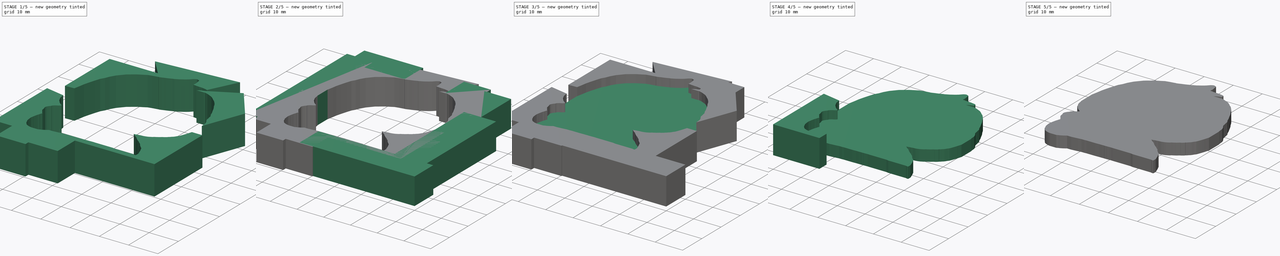
[diagram: build sequence overview — one tinted view per stage of 5, left to right]
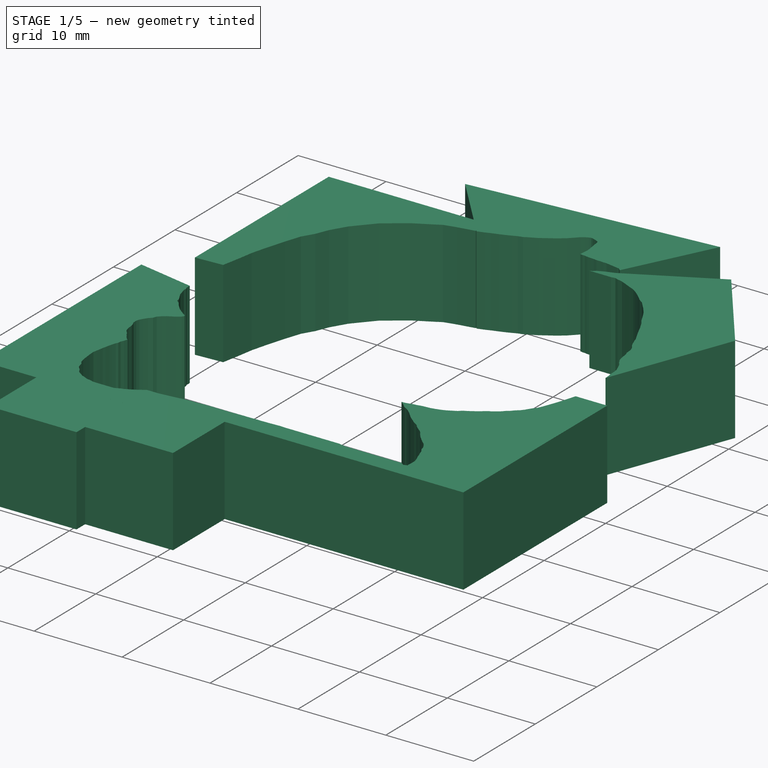
[diagram: stage 1 of 5 — iso view after this stage's code; geometry added in this stage tinted green]
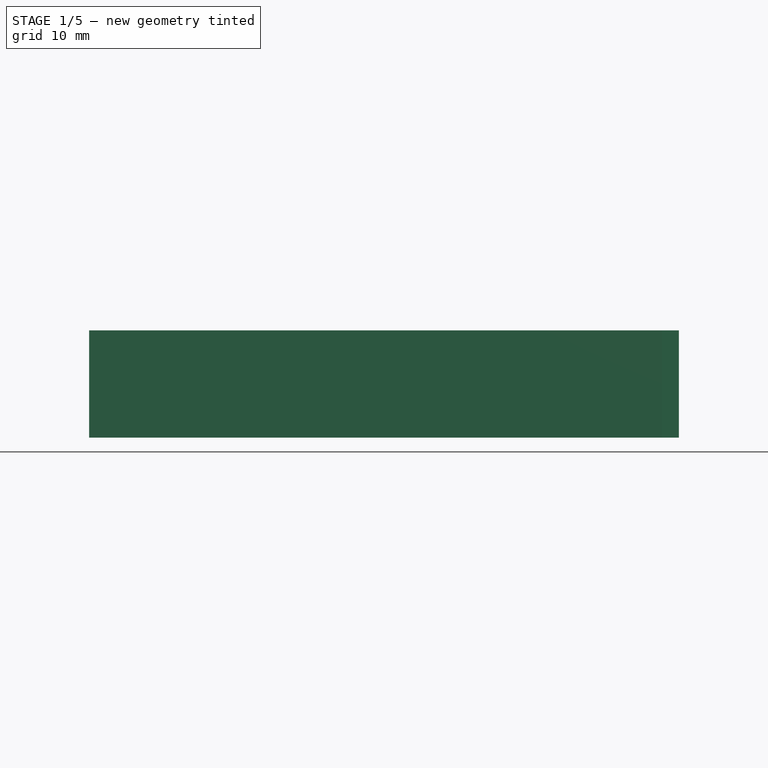
[diagram: stage 1 of 5 — front view after this stage's code; geometry added in this stage tinted green]
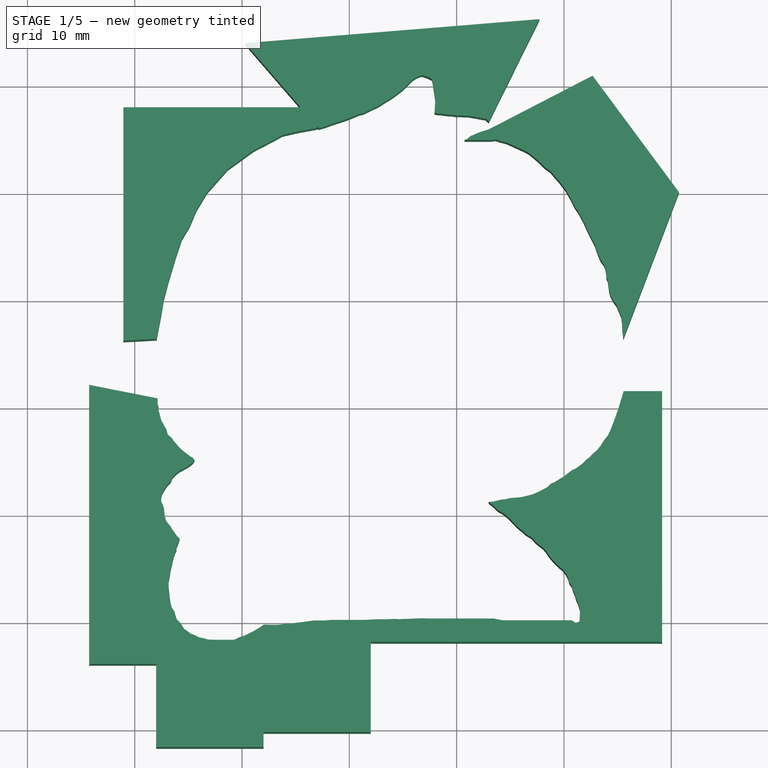
[diagram: stage 1 of 5 — top view after this stage's code; geometry added in this stage tinted green]
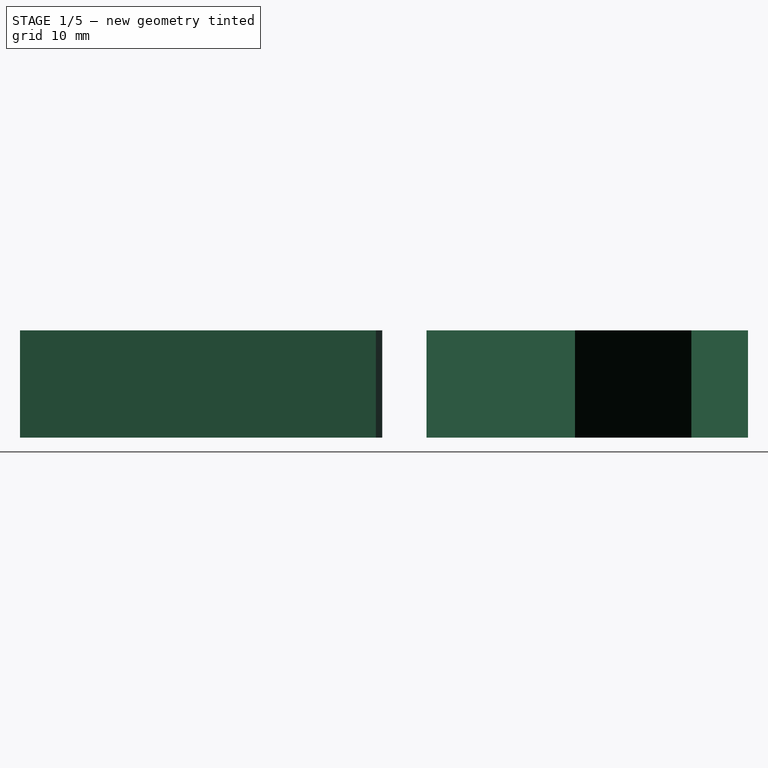
[diagram: stage 1 of 5 — right view after this stage's code; geometry added in this stage tinted green]
FCSTD DOCUMENT  (FreeCAD 1.0R38806 (Git))
Label: Cascarrabias
License: All rights reserved
LicenseURL: https://en.wikipedia.org/wiki/All_rights_reserved
objects: Part::Extrusion×27, Part::Cut×15, Part::Feature×14, Part::Box×11, Sketcher::SketchObject×5, App::LinkGroup×2
note: 77 computed .brp shape members not serialized (recipe doc carries the construction recipe); baked Part::Feature solids carry a one-line shape summary decoded from their .brp

FEATURE [Part::Box] Box009  label="Cube006"
  AttacherType = Attacher::AttachEngine3D
  Height = 10
  Length = 10
  Placement = pos=(92,-80.3,0) rot=(0,0,1;0rad)
  Width = 10
FEATURE [Part::Box] Box010  label="Cube007"
  AttacherType = Attacher::AttachEngine3D
  Height = 10
  Length = 10
  Placement = pos=(82,-81.7,0) rot=(0,0,1;0rad)
  Width = 10
FEATURE [Sketcher::SketchObject] Sketch
  ArcFitTolerance = 1e-06
  FullyConstrained = false
  MakeInternals = false
  sketch-geometry (19):
    g0: LineSegment StartX=85.1375 StartY=-33.1149 StartZ=0 EndX=84.3847 EndY=-34.3695 EndZ=0
    g1: LineSegment StartX=84.3847 StartY=-34.3695 StartZ=0 EndX=83.7992 EndY=-36.1259 EndZ=0
    g2: LineSegment StartX=83.7992 StartY=-36.1259 StartZ=0 EndX=83.1302 EndY=-38.3841 EndZ=0
    g3: LineSegment StartX=83.1302 StartY=-38.3841 StartZ=0 EndX=82.712 EndY=-39.9732 EndZ=0
    g4: LineSegment StartX=82.712 StartY=-39.9732 StartZ=0 EndX=82.461 EndY=-41.4787 EndZ=0
    g5: LineSegment StartX=82.461 StartY=-41.4787 StartZ=0 EndX=82.0429 EndY=-43.6533 EndZ=0
    g6: LineSegment StartX=82.0429 StartY=-43.6533 StartZ=0 EndX=78.9483 EndY=-43.8206 EndZ=0
    g7: LineSegment StartX=78.9483 StartY=-43.8206 StartZ=0 EndX=78.9483 EndY=-32.1949 EndZ=0
    g8: LineSegment StartX=78.9483 StartY=-32.1949 StartZ=0 EndX=78.9483 EndY=-22.0747 EndZ=0
    g9: LineSegment StartX=78.9483 StartY=-22.0747 StartZ=0 EndX=96.9304 EndY=-22.0747 EndZ=0
    g10: LineSegment StartX=96.9304 StartY=-22.0747 StartZ=0 EndX=97.014 EndY=-23.9984 EndZ=0
    g11: LineSegment StartX=97.014 StartY=-23.9984 StartZ=0 EndX=95.174 EndY=-24.3329 EndZ=0
    g12: LineSegment StartX=95.174 StartY=-24.3329 StartZ=0 EndX=93.7522 EndY=-24.6675 EndZ=0
    g13: LineSegment StartX=93.7522 StartY=-24.6675 StartZ=0 EndX=92.9994 EndY=-25.0857 EndZ=0
    g14: LineSegment StartX=92.9994 StartY=-25.0857 StartZ=0 EndX=91.0757 EndY=-26.0893 EndZ=0
    g15: LineSegment StartX=91.0757 StartY=-26.0893 StartZ=0 EndX=88.6502 EndY=-27.8457 EndZ=0
    g16: LineSegment StartX=88.6502 StartY=-27.8457 StartZ=0 EndX=86.7266 EndY=-30.0203 EndZ=0
    g17: LineSegment StartX=86.7266 StartY=-30.0203 StartZ=0 EndX=85.7229 EndY=-31.6931 EndZ=0
    g18: LineSegment StartX=85.7229 StartY=-31.6931 StartZ=0 EndX=85.1375 EndY=-33.1149 EndZ=0
  constraints (22):
    c: Coincident(g0,g1)
    c: Coincident(g1,g2)
    c: Coincident(g2,g3)
    c: Coincident(g3,g4)
    c: Coincident(g4,g5)
    c: Coincident(g5,g6)
    c: Coincident(g6,g7)
    c: Vertical(g7)
    c: Coincident(g7,g8)
    c: Vertical(g8)
    c: Coincident(g8,g9)
    c: Horizontal(g9)
    c: Coincident(g9,g10)
    c: Coincident(g10,g11)
    c: Coincident(g11,g12)
    c: Coincident(g12,g13)
    c: Coincident(g13,g14)
    c: Coincident(g14,g15)
    c: Coincident(g15,g16)
    c: Coincident(g16,g17)
    c: Coincident(g17,g18)
    c: Coincident(g18,g0)
FEATURE [Part::Extrusion] Extrude023
  Base = -> Sketch
  Dir = (0,0,1)
  DirMode = 2
  FaceMakerClass = Part::FaceMakerBullseye
  FaceMakerMode = 3
  LengthFwd = 10
  LengthRev = 0
  Solid = true
  Symmetric = false
FEATURE [Sketcher::SketchObject] Sketch001
  ArcFitTolerance = 1e-06
  FullyConstrained = false
  MakeInternals = false
  sketch-geometry (44):
    g0: LineSegment StartX=112.988 StartY=-23.4049 StartZ=0 EndX=112.687 EndY=-23.1285 EndZ=0
    g1: LineSegment StartX=112.687 StartY=-23.1285 StartZ=0 EndX=112.46 EndY=-23.1034 EndZ=0
    g2: LineSegment StartX=112.46 StartY=-23.1034 StartZ=0 EndX=112.058 EndY=-23.028 EndZ=0
    g3: LineSegment StartX=112.058 StartY=-23.028 StartZ=0 EndX=111.078 EndY=-22.8521 EndZ=0
    g4: LineSegment StartX=111.078 StartY=-22.8521 StartZ=0 EndX=110.727 EndY=-22.8521 EndZ=0
    g5: LineSegment StartX=110.727 StartY=-22.8521 StartZ=0 EndX=110.35 EndY=-22.827 EndZ=0
    g6: LineSegment StartX=110.35 StartY=-22.827 StartZ=0 EndX=109.922 EndY=-22.827 EndZ=0
    g7: LineSegment StartX=109.922 StartY=-22.827 StartZ=0 EndX=109.596 EndY=-22.7767 EndZ=0
    g8: LineSegment StartX=109.596 StartY=-22.7767 StartZ=0 EndX=109.244 EndY=-22.7516 EndZ=0
    g9: LineSegment StartX=109.244 StartY=-22.7516 StartZ=0 EndX=108.967 EndY=-22.7265 EndZ=0
    g10: LineSegment StartX=108.967 StartY=-22.7265 StartZ=0 EndX=108.741 EndY=-22.7013 EndZ=0
    g11: LineSegment StartX=108.741 StartY=-22.7013 StartZ=0 EndX=108.49 EndY=-22.6511 EndZ=0
    g12: LineSegment StartX=108.49 StartY=-22.6511 StartZ=0 EndX=108.214 EndY=-22.6511 EndZ=0
    g13: LineSegment StartX=108.214 StartY=-22.6511 StartZ=0 EndX=107.937 EndY=-22.6008 EndZ=0
    g14: LineSegment StartX=107.937 StartY=-22.6008 StartZ=0 EndX=108.013 EndY=-21.4198 EndZ=0
    g15: LineSegment StartX=108.013 StartY=-21.4198 StartZ=0 EndX=107.937 EndY=-20.8669 EndZ=0
    g16: LineSegment StartX=107.937 StartY=-20.8669 StartZ=0 EndX=107.837 EndY=-20.2638 EndZ=0
    g17: LineSegment StartX=107.837 StartY=-20.2638 StartZ=0 EndX=107.786 EndY=-19.8618 EndZ=0
    g18: LineSegment StartX=107.786 StartY=-19.8618 StartZ=0 EndX=107.711 EndY=-19.4597 EndZ=0
    g19: LineSegment StartX=107.711 StartY=-19.4597 StartZ=0 EndX=107.334 EndY=-19.2587 EndZ=0
    g20: LineSegment StartX=107.334 StartY=-19.2587 StartZ=0 EndX=106.907 EndY=-19.1079 EndZ=0
    g21: LineSegment StartX=106.907 StartY=-19.1079 StartZ=0 EndX=106.706 EndY=-19.0828 EndZ=0
    g22: LineSegment StartX=106.706 StartY=-19.0828 StartZ=0 EndX=106.48 EndY=-19.1581 EndZ=0
    g23: LineSegment StartX=106.48 StartY=-19.1581 StartZ=0 EndX=106.203 EndY=-19.2838 EndZ=0
    g24: LineSegment StartX=106.203 StartY=-19.2838 StartZ=0 EndX=105.801 EndY=-19.5602 EndZ=0
    g25: LineSegment StartX=105.801 StartY=-19.5602 StartZ=0 EndX=105.399 EndY=-19.9623 EndZ=0
    g26: LineSegment StartX=105.399 StartY=-19.9623 StartZ=0 EndX=104.947 EndY=-20.4146 EndZ=0
    g27: LineSegment StartX=104.947 StartY=-20.4146 StartZ=0 EndX=104.494 EndY=-20.7664 EndZ=0
    g28: LineSegment StartX=104.494 StartY=-20.7664 StartZ=0 EndX=103.967 EndY=-21.1433 EndZ=0
    g29: LineSegment StartX=103.967 StartY=-21.1433 StartZ=0 EndX=103.112 EndY=-21.671 EndZ=0
    g30: LineSegment StartX=103.112 StartY=-21.671 StartZ=0 EndX=102.685 EndY=-21.9475 EndZ=0
    g31: LineSegment StartX=102.685 StartY=-21.9475 StartZ=0 EndX=102.258 EndY=-22.1485 EndZ=0
    g32: LineSegment StartX=102.258 StartY=-22.1485 StartZ=0 EndX=101.831 EndY=-22.3495 EndZ=0
    g33: LineSegment StartX=101.831 StartY=-22.3495 StartZ=0 EndX=101.404 EndY=-22.5757 EndZ=0
    g34: LineSegment StartX=101.404 StartY=-22.5757 StartZ=0 EndX=100.901 EndY=-22.7013 EndZ=0
    g35: LineSegment StartX=100.901 StartY=-22.7013 StartZ=0 EndX=100.373 EndY=-22.9275 EndZ=0
    g36: LineSegment StartX=100.373 StartY=-22.9275 StartZ=0 EndX=99.7954 EndY=-23.1537 EndZ=0
    g37: LineSegment StartX=99.7954 StartY=-23.1537 StartZ=0 EndX=99.2174 EndY=-23.3547 EndZ=0
    g38: LineSegment StartX=99.2174 StartY=-23.3547 StartZ=0 EndX=98.4887 EndY=-23.5809 EndZ=0
    g39: LineSegment StartX=98.4887 StartY=-23.5809 StartZ=0 EndX=97.8856 EndY=-23.807 EndZ=0
    g40: LineSegment StartX=97.8856 StartY=-23.807 StartZ=0 EndX=97.1317 EndY=-24.0332 EndZ=0
    g41: LineSegment StartX=97.1317 StartY=-24.0332 StartZ=0 EndX=90.2715 EndY=-16.0924 EndZ=0
    g42: LineSegment StartX=90.2715 StartY=-16.0924 StartZ=0 EndX=117.712 EndY=-13.8559 EndZ=0
    g43: LineSegment StartX=117.712 StartY=-13.8559 StartZ=0 EndX=112.988 EndY=-23.4049 EndZ=0
  constraints (47):
    c: Coincident(g0,g1)
    c: Coincident(g1,g2)
    c: Coincident(g2,g3)
    c: Coincident(g3,g4)
    c: Horizontal(g4)
    c: Coincident(g4,g5)
    c: Coincident(g5,g6)
    c: Horizontal(g6)
    c: Coincident(g6,g7)
    c: Coincident(g7,g8)
    c: Coincident(g8,g9)
    c: Coincident(g9,g10)
    c: Coincident(g10,g11)
    c: Coincident(g11,g12)
    c: Horizontal(g12)
    c: Coincident(g12,g13)
    c: Coincident(g13,g14)
    c: Coincident(g14,g15)
    c: Coincident(g15,g16)
    c: Coincident(g16,g17)
    c: Coincident(g17,g18)
    c: Coincident(g18,g19)
    c: Coincident(g19,g20)
    c: Coincident(g20,g21)
    c: Coincident(g21,g22)
    c: Coincident(g22,g23)
    c: Coincident(g23,g24)
    c: Coincident(g24,g25)
    c: Coincident(g25,g26)
    c: Coincident(g26,g27)
    c: Coincident(g27,g28)
    c: Coincident(g28,g29)
    c: Coincident(g29,g30)
    c: Coincident(g30,g31)
    c: Coincident(g31,g32)
    c: Coincident(g32,g33)
    c: Coincident(g33,g34)
    c: Coincident(g34,g35)
    c: Coincident(g35,g36)
    c: Coincident(g36,g37)
    c: Coincident(g37,g38)
    c: Coincident(g38,g39)
    c: Coincident(g39,g40)
    c: Coincident(g40,g41)
    c: Coincident(g41,g42)
    c: Coincident(g42,g43)
    c: Coincident(g43,g0)
FEATURE [Part::Extrusion] Extrude024
  Base = -> Sketch001
  Dir = (0,0,1)
  DirMode = 2
  FaceMakerClass = Part::FaceMakerBullseye
  FaceMakerMode = 3
  LengthFwd = 10
  LengthRev = 0
  Solid = true
  Symmetric = false
FEATURE [Sketcher::SketchObject] Sketch002
  ArcFitTolerance = 1e-06
  AttachmentSupport = -> [Sketch001]
  FullyConstrained = false
  MakeInternals = false
  MapMode = 2
  sketch-geometry (55):
    g0: LineSegment StartX=113.035 StartY=-24.1097 StartZ=0 EndX=112.667 EndY=-24.2325 EndZ=0
    g1: LineSegment StartX=112.667 StartY=-24.2325 StartZ=0 EndX=112.268 EndY=-24.3553 EndZ=0
    g2: LineSegment StartX=112.268 StartY=-24.3553 StartZ=0 EndX=111.838 EndY=-24.5087 EndZ=0
    g3: LineSegment StartX=111.838 StartY=-24.5087 StartZ=0 EndX=111.531 EndY=-24.6622 EndZ=0
    g4: LineSegment StartX=111.531 StartY=-24.6622 StartZ=0 EndX=111.286 EndY=-24.7543 EndZ=0
    g5: LineSegment StartX=111.286 StartY=-24.7543 StartZ=0 EndX=111.01 EndY=-24.9998 EndZ=0
    g6: LineSegment StartX=111.01 StartY=-24.9998 StartZ=0 EndX=110.733 EndY=-25.1226 EndZ=0
    g7: LineSegment StartX=110.733 StartY=-25.1226 StartZ=0 EndX=113.189 EndY=-25.1226 EndZ=0
    g8: LineSegment StartX=113.189 StartY=-25.1226 StartZ=0 EndX=113.649 EndY=-25.0612 EndZ=0
    g9: LineSegment StartX=113.649 StartY=-25.0612 StartZ=0 EndX=113.987 EndY=-25.184 EndZ=0
    g10: LineSegment StartX=113.987 StartY=-25.184 StartZ=0 EndX=114.355 EndY=-25.2761 EndZ=0
    g11: LineSegment StartX=114.355 StartY=-25.2761 StartZ=0 EndX=114.601 EndY=-25.3374 EndZ=0
    g12: LineSegment StartX=114.601 StartY=-25.3374 StartZ=0 EndX=115.092 EndY=-25.5523 EndZ=0
    g13: LineSegment StartX=115.092 StartY=-25.5523 StartZ=0 EndX=115.828 EndY=-25.8899 EndZ=0
    g14: LineSegment StartX=115.828 StartY=-25.8899 StartZ=0 EndX=116.105 EndY=-26.0127 EndZ=0
    g15: LineSegment StartX=116.105 StartY=-26.0127 StartZ=0 EndX=116.442 EndY=-26.1662 EndZ=0
    g16: LineSegment StartX=116.442 StartY=-26.1662 StartZ=0 EndX=116.78 EndY=-26.381 EndZ=0
    g17: LineSegment StartX=116.78 StartY=-26.381 StartZ=0 EndX=117.24 EndY=-26.7493 EndZ=0
    g18: LineSegment StartX=117.24 StartY=-26.7493 StartZ=0 EndX=117.701 EndY=-27.1483 EndZ=0
    g19: LineSegment StartX=117.701 StartY=-27.1483 StartZ=0 EndX=118.222 EndY=-27.6701 EndZ=0
    g20: LineSegment StartX=118.222 StartY=-27.6701 StartZ=0 EndX=118.744 EndY=-28.0384 EndZ=0
    g21: LineSegment StartX=118.744 StartY=-28.0384 StartZ=0 EndX=119.266 EndY=-28.6523 EndZ=0
    g22: LineSegment StartX=119.266 StartY=-28.6523 StartZ=0 EndX=119.511 EndY=-28.9285 EndZ=0
    g23: LineSegment StartX=119.511 StartY=-28.9285 StartZ=0 EndX=119.818 EndY=-29.3275 EndZ=0
    g24: LineSegment StartX=119.818 StartY=-29.3275 StartZ=0 EndX=120.125 EndY=-29.7265 EndZ=0
    g25: LineSegment StartX=120.125 StartY=-29.7265 StartZ=0 EndX=120.432 EndY=-30.2483 EndZ=0
    g26: LineSegment StartX=120.432 StartY=-30.2483 StartZ=0 EndX=120.616 EndY=-30.5859 EndZ=0
    g27: LineSegment StartX=120.616 StartY=-30.5859 StartZ=0 EndX=120.862 EndY=-31.077 EndZ=0
    g28: LineSegment StartX=120.862 StartY=-31.077 StartZ=0 EndX=121.046 EndY=-31.4146 EndZ=0
    g29: LineSegment StartX=121.046 StartY=-31.4146 StartZ=0 EndX=121.353 EndY=-31.8443 EndZ=0
    g30: LineSegment StartX=121.353 StartY=-31.8443 StartZ=0 EndX=121.813 EndY=-32.7037 EndZ=0
    g31: LineSegment StartX=121.813 StartY=-32.7037 StartZ=0 EndX=122.059 EndY=-33.2562 EndZ=0
    g32: LineSegment StartX=122.059 StartY=-33.2562 StartZ=0 EndX=122.304 EndY=-33.7779 EndZ=0
    g33: LineSegment StartX=122.304 StartY=-33.7779 StartZ=0 EndX=122.918 EndY=-35.0057 EndZ=0
    g34: LineSegment StartX=122.918 StartY=-35.0057 StartZ=0 EndX=123.01 EndY=-35.3126 EndZ=0
    g35: LineSegment StartX=123.01 StartY=-35.3126 StartZ=0 EndX=123.256 EndY=-35.9571 EndZ=0
    g36: LineSegment StartX=123.256 StartY=-35.9571 StartZ=0 EndX=123.409 EndY=-36.2947 EndZ=0
    g37: LineSegment StartX=123.409 StartY=-36.2947 StartZ=0 EndX=123.747 EndY=-36.7858 EndZ=0
    g38: LineSegment StartX=123.747 StartY=-36.7858 StartZ=0 EndX=123.87 EndY=-37.1234 EndZ=0
    g39: LineSegment StartX=123.87 StartY=-37.1234 StartZ=0 EndX=123.931 EndY=-37.5225 EndZ=0
    g40: LineSegment StartX=123.931 StartY=-37.5225 StartZ=0 EndX=123.962 EndY=-37.9521 EndZ=0
    g41: LineSegment StartX=123.962 StartY=-37.9521 StartZ=0 EndX=124.085 EndY=-38.2284 EndZ=0
    g42: LineSegment StartX=124.085 StartY=-38.2284 StartZ=0 EndX=124.207 EndY=-39.1799 EndZ=0
    g43: LineSegment StartX=124.207 StartY=-39.1799 StartZ=0 EndX=124.33 EndY=-39.6096 EndZ=0
    g44: LineSegment StartX=124.33 StartY=-39.6096 StartZ=0 EndX=124.637 EndY=-40.162 EndZ=0
    g45: LineSegment StartX=124.637 StartY=-40.162 StartZ=0 EndX=124.913 EndY=-40.5303 EndZ=0
    g46: LineSegment StartX=124.913 StartY=-40.5303 StartZ=0 EndX=125.159 EndY=-41.1135 EndZ=0
    g47: LineSegment StartX=125.159 StartY=-41.1135 StartZ=0 EndX=125.344 EndY=-41.5794 EndZ=0
    g48: LineSegment StartX=125.344 StartY=-41.5794 StartZ=0 EndX=125.405 EndY=-42.0704 EndZ=0
    g49: LineSegment StartX=125.405 StartY=-42.0704 StartZ=0 EndX=125.436 EndY=-42.715 EndZ=0
    g50: LineSegment StartX=125.436 StartY=-42.715 StartZ=0 EndX=125.497 EndY=-43.1754 EndZ=0
    g51: LineSegment StartX=125.497 StartY=-43.1754 StartZ=0 EndX=125.528 EndY=-43.6358 EndZ=0
    g52: LineSegment StartX=125.528 StartY=-43.6358 StartZ=0 EndX=130.715 EndY=-29.9775 EndZ=0
    g53: LineSegment StartX=130.715 StartY=-29.9775 StartZ=0 EndX=122.67 EndY=-19.1276 EndZ=0
    g54: LineSegment StartX=122.67 StartY=-19.1276 StartZ=0 EndX=113.035 EndY=-24.1097 EndZ=0
  constraints (56):
    c: Coincident(g0,g1)
    c: Coincident(g1,g2)
    c: Coincident(g2,g3)
    c: Coincident(g3,g4)
    c: Coincident(g4,g5)
    c: Coincident(g5,g6)
    c: Coincident(g6,g7)
    c: Horizontal(g7)
    c: Coincident(g7,g8)
    c: Coincident(g8,g9)
    c: Coincident(g9,g10)
    c: Coincident(g10,g11)
    c: Coincident(g11,g12)
    c: Coincident(g12,g13)
    c: Coincident(g13,g14)
    c: Coincident(g14,g15)
    c: Coincident(g15,g16)
    c: Coincident(g16,g17)
    c: Coincident(g17,g18)
    c: Coincident(g18,g19)
    c: Coincident(g19,g20)
    c: Coincident(g20,g21)
    c: Coincident(g21,g22)
    c: Coincident(g22,g23)
    c: Coincident(g23,g24)
    c: Coincident(g24,g25)
    c: Coincident(g25,g26)
    c: Coincident(g26,g27)
    c: Coincident(g27,g28)
    c: Coincident(g28,g29)
    c: Coincident(g29,g30)
    c: Coincident(g30,g31)
    c: Coincident(g31,g32)
    c: Coincident(g32,g33)
    c: Coincident(g33,g34)
    c: Coincident(g34,g35)
    c: Coincident(g35,g36)
    c: Coincident(g36,g37)
    c: Coincident(g37,g38)
    c: Coincident(g38,g39)
    c: Coincident(g39,g40)
    c: Coincident(g40,g41)
    c: Coincident(g41,g42)
    c: Coincident(g42,g43)
    c: Coincident(g43,g44)
    c: Coincident(g44,g45)
    c: Coincident(g45,g46)
    c: Coincident(g46,g47)
    c: Coincident(g47,g48)
    c: Coincident(g48,g49)
    c: Coincident(g49,g50)
    c: Coincident(g50,g51)
    c: Coincident(g51,g52)
    c: Coincident(g52,g53)
    c: Coincident(g53,g54)
    c: Coincident(g54,g0)
FEATURE [Part::Extrusion] Extrude025
  Base = -> Sketch002
  Dir = (0,0,1)
  DirMode = 2
  FaceMakerClass = Part::FaceMakerBullseye
  FaceMakerMode = 3
  LengthFwd = 10
  LengthRev = 0
  Solid = true
  Symmetric = false
FEATURE [Sketcher::SketchObject] Sketch003
  ArcFitTolerance = 1e-06
  AttachmentSupport = -> [Sketch002]
  FullyConstrained = false
  MakeInternals = false
  MapMode = 2
  sketch-geometry (93):
    g0: LineSegment StartX=125.561 StartY=-48.5332 StartZ=0 EndX=125.408 EndY=-49.0593 EndZ=0
    g1: LineSegment StartX=125.408 StartY=-49.0593 StartZ=0 EndX=125.224 EndY=-49.6424 EndZ=0
    g2: LineSegment StartX=125.224 StartY=-49.6424 StartZ=0 EndX=125.07 EndY=-50.1642 EndZ=0
    g3: LineSegment StartX=125.07 StartY=-50.1642 StartZ=0 EndX=124.855 EndY=-50.778 EndZ=0
    g4: LineSegment StartX=124.855 StartY=-50.778 StartZ=0 EndX=124.548 EndY=-51.6067 EndZ=0
    g5: LineSegment StartX=124.548 StartY=-51.6067 StartZ=0 EndX=124.303 EndY=-52.2206 EndZ=0
    g6: LineSegment StartX=124.303 StartY=-52.2206 StartZ=0 EndX=124.088 EndY=-52.681 EndZ=0
    g7: LineSegment StartX=124.088 StartY=-52.681 StartZ=0 EndX=123.75 EndY=-53.08 EndZ=0
    g8: LineSegment StartX=123.75 StartY=-53.08 StartZ=0 EndX=123.382 EndY=-53.6632 EndZ=0
    g9: LineSegment StartX=123.382 StartY=-53.6632 StartZ=0 EndX=123.106 EndY=-54.0008 EndZ=0
    g10: LineSegment StartX=123.106 StartY=-54.0008 StartZ=0 EndX=122.676 EndY=-54.3691 EndZ=0
    g11: LineSegment StartX=122.676 StartY=-54.3691 StartZ=0 EndX=122.369 EndY=-54.7067 EndZ=0
    g12: LineSegment StartX=122.369 StartY=-54.7067 StartZ=0 EndX=122.093 EndY=-54.8909 EndZ=0
    g13: LineSegment StartX=122.093 StartY=-54.8909 StartZ=0 EndX=121.786 EndY=-55.2285 EndZ=0
    g14: LineSegment StartX=121.786 StartY=-55.2285 StartZ=0 EndX=121.54 EndY=-55.4126 EndZ=0
    g15: LineSegment StartX=121.54 StartY=-55.4126 StartZ=0 EndX=121.08 EndY=-55.7503 EndZ=0
    g16: LineSegment StartX=121.08 StartY=-55.7503 StartZ=0 EndX=120.773 EndY=-55.873 EndZ=0
    g17: LineSegment StartX=120.773 StartY=-55.873 StartZ=0 EndX=120.374 EndY=-56.18 EndZ=0
    g18: LineSegment StartX=120.374 StartY=-56.18 StartZ=0 EndX=119.944 EndY=-56.5176 EndZ=0
    g19: LineSegment StartX=119.944 StartY=-56.5176 StartZ=0 EndX=119.607 EndY=-56.7017 EndZ=0
    g20: LineSegment StartX=119.607 StartY=-56.7017 StartZ=0 EndX=119.177 EndY=-56.978 EndZ=0
    g21: LineSegment StartX=119.177 StartY=-56.978 StartZ=0 EndX=118.778 EndY=-57.1621 EndZ=0
    g22: LineSegment StartX=118.778 StartY=-57.1621 StartZ=0 EndX=118.41 EndY=-57.4998 EndZ=0
    g23: LineSegment StartX=118.41 StartY=-57.4998 StartZ=0 EndX=117.949 EndY=-57.7453 EndZ=0
    g24: LineSegment StartX=117.949 StartY=-57.7453 StartZ=0 EndX=117.397 EndY=-58.0215 EndZ=0
    g25: LineSegment StartX=117.397 StartY=-58.0215 StartZ=0 EndX=116.967 EndY=-58.175 EndZ=0
    g26: LineSegment StartX=116.967 StartY=-58.175 StartZ=0 EndX=116.384 EndY=-58.3285 EndZ=0
    g27: LineSegment StartX=116.384 StartY=-58.3285 StartZ=0 EndX=115.954 EndY=-58.4205 EndZ=0
    g28: LineSegment StartX=115.954 StartY=-58.4205 StartZ=0 EndX=115.555 EndY=-58.4512 EndZ=0
    g29: LineSegment StartX=115.555 StartY=-58.4512 StartZ=0 EndX=115.095 EndY=-58.4819 EndZ=0
    g30: LineSegment StartX=115.095 StartY=-58.4819 StartZ=0 EndX=114.542 EndY=-58.6047 EndZ=0
    g31: LineSegment StartX=114.542 StartY=-58.6047 StartZ=0 EndX=114.174 EndY=-58.6354 EndZ=0
    g32: LineSegment StartX=114.174 StartY=-58.6354 StartZ=0 EndX=113.775 EndY=-58.7275 EndZ=0
    g33: LineSegment StartX=113.775 StartY=-58.7275 StartZ=0 EndX=113.438 EndY=-58.8195 EndZ=0
    g34: LineSegment StartX=113.438 StartY=-58.8195 StartZ=0 EndX=112.977 EndY=-58.8502 EndZ=0
    g35: LineSegment StartX=112.977 StartY=-58.8502 StartZ=0 EndX=113.468 EndY=-59.2492 EndZ=0
    g36: LineSegment StartX=113.468 StartY=-59.2492 StartZ=0 EndX=113.867 EndY=-59.6482 EndZ=0
    g37: LineSegment StartX=113.867 StartY=-59.6482 StartZ=0 EndX=114.236 EndY=-59.8324 EndZ=0
    g38: LineSegment StartX=114.236 StartY=-59.8324 StartZ=0 EndX=114.604 EndY=-60.1086 EndZ=0
    g39: LineSegment StartX=114.604 StartY=-60.1086 StartZ=0 EndX=114.972 EndY=-60.4463 EndZ=0
    g40: LineSegment StartX=114.972 StartY=-60.4463 StartZ=0 EndX=115.248 EndY=-60.7532 EndZ=0
    g41: LineSegment StartX=115.248 StartY=-60.7532 StartZ=0 EndX=115.678 EndY=-61.1829 EndZ=0
    g42: LineSegment StartX=115.678 StartY=-61.1829 StartZ=0 EndX=116.169 EndY=-61.5819 EndZ=0
    g43: LineSegment StartX=116.169 StartY=-61.5819 StartZ=0 EndX=116.476 EndY=-61.8581 EndZ=0
    g44: LineSegment StartX=116.476 StartY=-61.8581 StartZ=0 EndX=117.029 EndY=-62.1957 EndZ=0
    g45: LineSegment StartX=117.029 StartY=-62.1957 StartZ=0 EndX=117.305 EndY=-62.5334 EndZ=0
    g46: LineSegment StartX=117.305 StartY=-62.5334 StartZ=0 EndX=117.673 EndY=-62.8403 EndZ=0
    g47: LineSegment StartX=117.673 StartY=-62.8403 StartZ=0 EndX=118.103 EndY=-63.1779 EndZ=0
    g48: LineSegment StartX=118.103 StartY=-63.1779 StartZ=0 EndX=118.348 EndY=-63.4848 EndZ=0
    g49: LineSegment StartX=118.348 StartY=-63.4848 StartZ=0 EndX=118.533 EndY=-63.768 EndZ=0
    g50: LineSegment StartX=118.533 StartY=-63.768 StartZ=0 EndX=118.901 EndY=-64.2284 EndZ=0
    g51: LineSegment StartX=118.901 StartY=-64.2284 StartZ=0 EndX=119.239 EndY=-64.566 EndZ=0
    g52: LineSegment StartX=119.239 StartY=-64.566 StartZ=0 EndX=119.607 EndY=-64.9343 EndZ=0
    g53: LineSegment StartX=119.607 StartY=-64.9343 StartZ=0 EndX=119.945 EndY=-65.2106 EndZ=0
    g54: LineSegment StartX=119.945 StartY=-65.2106 StartZ=0 EndX=120.221 EndY=-65.6096 EndZ=0
    g55: LineSegment StartX=120.221 StartY=-65.6096 StartZ=0 EndX=120.405 EndY=-65.9779 EndZ=0
    g56: LineSegment StartX=120.405 StartY=-65.9779 StartZ=0 EndX=120.497 EndY=-66.3462 EndZ=0
    g57: LineSegment StartX=120.497 StartY=-66.3462 StartZ=0 EndX=120.743 EndY=-66.7145 EndZ=0
    g58: LineSegment StartX=120.743 StartY=-66.7145 StartZ=0 EndX=120.866 EndY=-67.1442 EndZ=0
    g59: LineSegment StartX=120.866 StartY=-67.1442 StartZ=0 EndX=121.019 EndY=-67.4818 EndZ=0
    g60: LineSegment StartX=121.019 StartY=-67.4818 StartZ=0 EndX=121.142 EndY=-67.9115 EndZ=0
    g61: LineSegment StartX=121.142 StartY=-67.9115 StartZ=0 EndX=121.326 EndY=-68.3105 EndZ=0
    g62: LineSegment StartX=121.326 StartY=-68.3105 StartZ=0 EndX=121.48 EndY=-68.8323 EndZ=0
    g63: LineSegment StartX=121.48 StartY=-68.8323 StartZ=0 EndX=121.48 EndY=-69.4197 EndZ=0
    g64: LineSegment StartX=121.48 StartY=-69.4197 StartZ=0 EndX=121.449 EndY=-70.0029 EndZ=0
    g65: LineSegment StartX=121.449 StartY=-70.0029 StartZ=0 EndX=121.08 EndY=-70.1256 EndZ=0
    g66: LineSegment StartX=121.08 StartY=-70.1256 StartZ=0 EndX=120.712 EndY=-69.8801 EndZ=0
    g67: LineSegment StartX=120.712 StartY=-69.8801 StartZ=0 EndX=114.267 EndY=-69.8801 EndZ=0
    g68: LineSegment StartX=114.267 StartY=-69.8801 StartZ=0 EndX=113.469 EndY=-69.7266 EndZ=0
    g69: LineSegment StartX=113.469 StartY=-69.7266 StartZ=0 EndX=107.453 EndY=-69.7266 EndZ=0
    g70: LineSegment StartX=107.453 StartY=-69.7266 StartZ=0 EndX=106.716 EndY=-69.696 EndZ=0
    g71: LineSegment StartX=106.716 StartY=-69.696 StartZ=0 EndX=105.98 EndY=-69.7266 EndZ=0
    g72: LineSegment StartX=105.98 StartY=-69.7266 StartZ=0 EndX=105.458 EndY=-69.7573 EndZ=0
    g73: LineSegment StartX=105.458 StartY=-69.7573 StartZ=0 EndX=105.059 EndY=-69.7573 EndZ=0
    g74: LineSegment StartX=105.059 StartY=-69.7573 StartZ=0 EndX=104.629 EndY=-69.788 EndZ=0
    g75: LineSegment StartX=104.629 StartY=-69.788 StartZ=0 EndX=104.23 EndY=-69.7573 EndZ=0
    g76: LineSegment StartX=104.23 StartY=-69.7573 StartZ=0 EndX=103.524 EndY=-69.788 EndZ=0
    g77: LineSegment StartX=103.524 StartY=-69.788 StartZ=0 EndX=102.695 EndY=-69.788 EndZ=0
    g78: LineSegment StartX=102.695 StartY=-69.788 StartZ=0 EndX=102.082 EndY=-69.8187 EndZ=0
    g79: LineSegment StartX=102.082 StartY=-69.8187 StartZ=0 EndX=101.345 EndY=-69.8494 EndZ=0
    g80: LineSegment StartX=101.345 StartY=-69.8494 StartZ=0 EndX=100.301 EndY=-69.8494 EndZ=0
    g81: LineSegment StartX=100.301 StartY=-69.8494 StartZ=0 EndX=99.2272 EndY=-69.8494 EndZ=0
    g82: LineSegment StartX=99.2272 StartY=-69.8494 StartZ=0 EndX=98.3064 EndY=-69.8494 EndZ=0
    g83: LineSegment StartX=98.3064 StartY=-69.8494 StartZ=0 EndX=97.6619 EndY=-69.9108 EndZ=0
    g84: LineSegment StartX=97.6619 StartY=-69.9108 StartZ=0 EndX=96.649 EndY=-69.9108 EndZ=0
    g85: LineSegment StartX=96.649 StartY=-69.9108 StartZ=0 EndX=95.5441 EndY=-70.0643 EndZ=0
    g86: LineSegment StartX=95.5441 StartY=-70.0643 StartZ=0 EndX=94.746 EndY=-70.1563 EndZ=0
    g87: LineSegment StartX=94.746 StartY=-70.1563 StartZ=0 EndX=93.8253 EndY=-70.2484 EndZ=0
    g88: LineSegment StartX=93.8253 StartY=-70.2484 StartZ=0 EndX=93.0886 EndY=-70.3405 EndZ=0
    g89: LineSegment StartX=93.0886 StartY=-70.3405 StartZ=0 EndX=93.0272 EndY=-71.9058 EndZ=0
    g90: LineSegment StartX=93.0272 StartY=-71.9058 StartZ=0 EndX=129.153 EndY=-71.9058 EndZ=0
    g91: LineSegment StartX=129.153 StartY=-71.9058 StartZ=0 EndX=129.153 EndY=-48.5332 EndZ=0
    g92: LineSegment StartX=129.153 StartY=-48.5332 StartZ=0 EndX=125.561 EndY=-48.5332 EndZ=0
  constraints (105):
    c: Coincident(g0,g1)
    c: Coincident(g1,g2)
    c: Coincident(g2,g3)
    c: Coincident(g3,g4)
    c: Coincident(g4,g5)
    c: Coincident(g5,g6)
    c: Coincident(g6,g7)
    c: Coincident(g7,g8)
    c: Coincident(g8,g9)
    c: Coincident(g9,g10)
    c: Coincident(g10,g11)
    c: Coincident(g11,g12)
    c: Coincident(g12,g13)
    c: Coincident(g13,g14)
    c: Coincident(g14,g15)
    c: Coincident(g15,g16)
    c: Coincident(g16,g17)
    c: Coincident(g17,g18)
    c: Coincident(g18,g19)
    c: Coincident(g19,g20)
    c: Coincident(g20,g21)
    c: Coincident(g21,g22)
    c: Coincident(g22,g23)
    c: Coincident(g23,g24)
    c: Coincident(g24,g25)
    c: Coincident(g25,g26)
    c: Coincident(g26,g27)
    c: Coincident(g27,g28)
    c: Coincident(g28,g29)
    c: Coincident(g29,g30)
    c: Coincident(g30,g31)
    c: Coincident(g31,g32)
    c: Coincident(g32,g33)
    c: Coincident(g33,g34)
    c: Coincident(g34,g35)
    c: Coincident(g35,g36)
    c: Coincident(g36,g37)
    c: Coincident(g37,g38)
    c: Coincident(g38,g39)
    c: Coincident(g39,g40)
    c: Coincident(g40,g41)
    c: Coincident(g41,g42)
    c: Coincident(g42,g43)
    c: Coincident(g43,g44)
    c: Coincident(g44,g45)
    c: Coincident(g45,g46)
    c: Coincident(g46,g47)
    c: Coincident(g47,g48)
    c: Coincident(g48,g49)
    c: Coincident(g49,g50)
    c: Coincident(g50,g51)
    c: Coincident(g51,g52)
    c: Coincident(g52,g53)
    c: Coincident(g53,g54)
    c: Coincident(g54,g55)
    c: Coincident(g55,g56)
    c: Coincident(g56,g57)
    c: Coincident(g57,g58)
    c: Coincident(g58,g59)
    c: Coincident(g59,g60)
    c: Coincident(g60,g61)
    c: Coincident(g61,g62)
    c: Coincident(g62,g63)
    c: Vertical(g63)
    c: Coincident(g63,g64)
    c: Coincident(g64,g65)
    c: Coincident(g65,g66)
    c: Coincident(g66,g67)
    c: Horizontal(g67)
    c: Coincident(g67,g68)
    c: Coincident(g68,g69)
    c: Horizontal(g69)
    c: Coincident(g69,g70)
    c: Coincident(g70,g71)
    c: Coincident(g71,g72)
    c: Coincident(g72,g73)
    c: Horizontal(g73)
    c: Coincident(g73,g74)
    c: Coincident(g74,g75)
    c: Coincident(g75,g76)
    c: Coincident(g76,g77)
    c: Horizontal(g77)
    c: Coincident(g77,g78)
    c: Coincident(g78,g79)
    c: Coincident(g79,g80)
    c: Horizontal(g80)
    c: Coincident(g80,g81)
    c: Horizontal(g81)
    c: Coincident(g81,g82)
    c: Horizontal(g82)
    c: Coincident(g82,g83)
    c: Coincident(g83,g84)
    c: Horizontal(g84)
    c: Coincident(g84,g85)
    c: Coincident(g85,g86)
    c: Coincident(g86,g87)
    c: Coincident(g87,g88)
    c: Coincident(g88,g89)
    c: Coincident(g89,g90)
    c: Horizontal(g90)
    c: Coincident(g90,g91)
    c: Vertical(g91)
    c: Coincident(g91,g92)
    c: Coincident(g92,g0)
    c: Horizontal(g92)
FEATURE [Part::Extrusion] Extrude026
  Base = -> Sketch003
  Dir = (0,0,1)
  DirMode = 2
  FaceMakerClass = Part::FaceMakerBullseye
  FaceMakerMode = 3
  LengthFwd = 10
  LengthRev = 0
  Solid = true
  Symmetric = false
FEATURE [Sketcher::SketchObject] Sketch004
  ArcFitTolerance = 1e-06
  AttachmentSupport = -> [Sketch003]
  FullyConstrained = false
  MakeInternals = false
  MapMode = 2
  sketch-geometry (80):
    g0: LineSegment StartX=82.1297 StartY=-49.203 StartZ=0 EndX=82.1297 EndY=-49.6941 EndZ=0
    g1: LineSegment StartX=82.1297 StartY=-49.6941 StartZ=0 EndX=82.2218 EndY=-49.9396 EndZ=0
    g2: LineSegment StartX=82.2218 StartY=-49.9396 StartZ=0 EndX=82.2218 EndY=-50.3079 EndZ=0
    g3: LineSegment StartX=82.2218 StartY=-50.3079 StartZ=0 EndX=82.3446 EndY=-50.7376 EndZ=0
    g4: LineSegment StartX=82.3446 StartY=-50.7376 StartZ=0 EndX=82.4674 EndY=-51.2287 EndZ=0
    g5: LineSegment StartX=82.4674 StartY=-51.2287 StartZ=0 EndX=82.6516 EndY=-51.5663 EndZ=0
    g6: LineSegment StartX=82.6516 StartY=-51.5663 StartZ=0 EndX=82.9586 EndY=-52.1188 EndZ=0
    g7: LineSegment StartX=82.9586 StartY=-52.1188 StartZ=0 EndX=83.0814 EndY=-52.5792 EndZ=0
    g8: LineSegment StartX=83.0814 StartY=-52.5792 StartZ=0 EndX=83.419 EndY=-52.8554 EndZ=0
    g9: LineSegment StartX=83.419 StartY=-52.8554 StartZ=0 EndX=83.726 EndY=-53.2851 EndZ=0
    g10: LineSegment StartX=83.726 StartY=-53.2851 StartZ=0 EndX=84.3093 EndY=-53.9297 EndZ=0
    g11: LineSegment StartX=84.3093 StartY=-53.9297 StartZ=0 EndX=84.7698 EndY=-54.298 EndZ=0
    g12: LineSegment StartX=84.7698 StartY=-54.298 StartZ=0 EndX=85.1381 EndY=-54.5742 EndZ=0
    g13: LineSegment StartX=85.1381 StartY=-54.5742 StartZ=0 EndX=85.4758 EndY=-54.7891 EndZ=0
    g14: LineSegment StartX=85.4758 StartY=-54.7891 StartZ=0 EndX=85.5679 EndY=-54.9425 EndZ=0
    g15: LineSegment StartX=85.5679 StartY=-54.9425 StartZ=0 EndX=85.4144 EndY=-55.1881 EndZ=0
    g16: LineSegment StartX=85.4144 StartY=-55.1881 StartZ=0 EndX=85.1688 EndY=-55.3722 EndZ=0
    g17: LineSegment StartX=85.1688 StartY=-55.3722 StartZ=0 EndX=84.9233 EndY=-55.5564 EndZ=0
    g18: LineSegment StartX=84.9233 StartY=-55.5564 StartZ=0 EndX=84.6777 EndY=-55.6791 EndZ=0
    g19: LineSegment StartX=84.6777 StartY=-55.6791 StartZ=0 EndX=84.2172 EndY=-55.9247 EndZ=0
    g20: LineSegment StartX=84.2172 StartY=-55.9247 StartZ=0 EndX=83.8488 EndY=-56.2009 EndZ=0
    g21: LineSegment StartX=83.8488 StartY=-56.2009 StartZ=0 EndX=83.5111 EndY=-56.5385 EndZ=0
    g22: LineSegment StartX=83.5111 StartY=-56.5385 StartZ=0 EndX=83.3576 EndY=-56.9375 EndZ=0
    g23: LineSegment StartX=83.3576 StartY=-56.9375 StartZ=0 EndX=83.02 EndY=-57.2752 EndZ=0
    g24: LineSegment StartX=83.02 StartY=-57.2752 StartZ=0 EndX=82.7437 EndY=-57.7049 EndZ=0
    g25: LineSegment StartX=82.7437 StartY=-57.7049 StartZ=0 EndX=82.5595 EndY=-58.0118 EndZ=0
    g26: LineSegment StartX=82.5595 StartY=-58.0118 StartZ=0 EndX=82.4674 EndY=-58.3801 EndZ=0
    g27: LineSegment StartX=82.4674 StartY=-58.3801 StartZ=0 EndX=82.4674 EndY=-58.8405 EndZ=0
    g28: LineSegment StartX=82.4674 StartY=-58.8405 StartZ=0 EndX=82.6209 EndY=-59.1167 EndZ=0
    g29: LineSegment StartX=82.6209 StartY=-59.1167 StartZ=0 EndX=82.713 EndY=-59.4237 EndZ=0
    g30: LineSegment StartX=82.713 StartY=-59.4237 StartZ=0 EndX=82.7437 EndY=-59.6078 EndZ=0
    g31: LineSegment StartX=82.7437 StartY=-59.6078 StartZ=0 EndX=82.7744 EndY=-59.9761 EndZ=0
    g32: LineSegment StartX=82.7744 StartY=-59.9761 StartZ=0 EndX=82.8358 EndY=-60.2831 EndZ=0
    g33: LineSegment StartX=82.8358 StartY=-60.2831 StartZ=0 EndX=82.8972 EndY=-60.5286 EndZ=0
    g34: LineSegment StartX=82.8972 StartY=-60.5286 StartZ=0 EndX=82.9893 EndY=-60.7127 EndZ=0
    g35: LineSegment StartX=82.9893 StartY=-60.7127 StartZ=0 EndX=83.3269 EndY=-61.1118 EndZ=0
    g36: LineSegment StartX=83.3269 StartY=-61.1118 StartZ=0 EndX=83.4804 EndY=-61.388 EndZ=0
    g37: LineSegment StartX=83.4804 StartY=-61.388 StartZ=0 EndX=83.6032 EndY=-61.5415 EndZ=0
    g38: LineSegment StartX=83.6032 StartY=-61.5415 StartZ=0 EndX=83.7874 EndY=-61.8177 EndZ=0
    g39: LineSegment StartX=83.7874 StartY=-61.8177 StartZ=0 EndX=83.9716 EndY=-62.0632 EndZ=0
    g40: LineSegment StartX=83.9716 StartY=-62.0632 StartZ=0 EndX=84.1865 EndY=-62.2474 EndZ=0
    g41: LineSegment StartX=84.1865 StartY=-62.2474 StartZ=0 EndX=84.0637 EndY=-62.6464 EndZ=0
    g42: LineSegment StartX=84.0637 StartY=-62.6464 StartZ=0 EndX=83.9102 EndY=-62.984 EndZ=0
    g43: LineSegment StartX=83.9102 StartY=-62.984 StartZ=0 EndX=83.8795 EndY=-63.3216 EndZ=0
    g44: LineSegment StartX=83.8795 StartY=-63.3216 StartZ=0 EndX=83.7567 EndY=-63.5365 EndZ=0
    g45: LineSegment StartX=83.7567 StartY=-63.5365 StartZ=0 EndX=83.6339 EndY=-63.9355 EndZ=0
    g46: LineSegment StartX=83.6339 StartY=-63.9355 StartZ=0 EndX=83.5418 EndY=-64.2731 EndZ=0
    g47: LineSegment StartX=83.5418 StartY=-64.2731 StartZ=0 EndX=83.4497 EndY=-64.7335 EndZ=0
    g48: LineSegment StartX=83.4497 StartY=-64.7335 StartZ=0 EndX=83.3576 EndY=-65.0711 EndZ=0
    g49: LineSegment StartX=83.3576 StartY=-65.0711 StartZ=0 EndX=83.2963 EndY=-65.5008 EndZ=0
    g50: LineSegment StartX=83.2963 StartY=-65.5008 StartZ=0 EndX=83.2349 EndY=-65.8384 EndZ=0
    g51: LineSegment StartX=83.2349 StartY=-65.8384 StartZ=0 EndX=83.1428 EndY=-66.2988 EndZ=0
    g52: LineSegment StartX=83.1428 StartY=-66.2988 StartZ=0 EndX=83.1735 EndY=-66.9127 EndZ=0
    g53: LineSegment StartX=83.1735 StartY=-66.9127 StartZ=0 EndX=83.267 EndY=-67.75 EndZ=0
    g54: LineSegment StartX=83.267 StartY=-67.75 StartZ=0 EndX=83.3284 EndY=-68.2104 EndZ=0
    g55: LineSegment StartX=83.3284 StartY=-68.2104 StartZ=0 EndX=83.4511 EndY=-68.7015 EndZ=0
    g56: LineSegment StartX=83.4511 StartY=-68.7015 StartZ=0 EndX=83.7274 EndY=-69.1005 EndZ=0
    g57: LineSegment StartX=83.7274 StartY=-69.1005 StartZ=0 EndX=83.7888 EndY=-69.4074 EndZ=0
    g58: LineSegment StartX=83.7888 StartY=-69.4074 StartZ=0 EndX=83.9116 EndY=-69.7757 EndZ=0
    g59: LineSegment StartX=83.9116 StartY=-69.7757 StartZ=0 EndX=84.3107 EndY=-70.2054 EndZ=0
    g60: LineSegment StartX=84.3107 StartY=-70.2054 StartZ=0 EndX=84.587 EndY=-70.6658 EndZ=0
    g61: LineSegment StartX=84.587 StartY=-70.6658 StartZ=0 EndX=85.2623 EndY=-71.1569 EndZ=0
    g62: LineSegment StartX=85.2623 StartY=-71.1569 StartZ=0 EndX=85.5386 EndY=-71.249 EndZ=0
    g63: LineSegment StartX=85.5386 StartY=-71.249 StartZ=0 EndX=85.7228 EndY=-71.3411 EndZ=0
    g64: LineSegment StartX=85.7228 StartY=-71.3411 StartZ=0 EndX=86.0605 EndY=-71.4945 EndZ=0
    g65: LineSegment StartX=86.0605 StartY=-71.4945 StartZ=0 EndX=86.4289 EndY=-71.5559 EndZ=0
    g66: LineSegment StartX=86.4289 StartY=-71.5559 StartZ=0 EndX=86.8279 EndY=-71.6787 EndZ=0
    g67: LineSegment StartX=86.8279 StartY=-71.6787 StartZ=0 EndX=89.0382 EndY=-71.7708 EndZ=0
    g68: LineSegment StartX=89.0382 StartY=-71.7708 StartZ=0 EndX=89.4373 EndY=-71.6173 EndZ=0
    g69: LineSegment StartX=89.4373 StartY=-71.6173 StartZ=0 EndX=89.8364 EndY=-71.4331 EndZ=0
    g70: LineSegment StartX=89.8364 StartY=-71.4331 StartZ=0 EndX=90.174 EndY=-71.3411 EndZ=0
    g71: LineSegment StartX=90.174 StartY=-71.3411 StartZ=0 EndX=90.7573 EndY=-71.0648 EndZ=0
    g72: LineSegment StartX=90.7573 StartY=-71.0648 StartZ=0 EndX=91.1564 EndY=-70.85 EndZ=0
    g73: LineSegment StartX=91.1564 StartY=-70.85 StartZ=0 EndX=91.5555 EndY=-70.6044 EndZ=0
    g74: LineSegment StartX=91.5555 StartY=-70.6044 StartZ=0 EndX=92.0159 EndY=-70.2975 EndZ=0
    g75: LineSegment StartX=92.0159 StartY=-70.2975 StartZ=0 EndX=92.3843 EndY=-70.2975 EndZ=0
    g76: LineSegment StartX=92.3843 StartY=-70.2975 StartZ=0 EndX=92.3843 EndY=-73.9499 EndZ=0
    g77: LineSegment StartX=92.3843 StartY=-73.9499 StartZ=0 EndX=75.7459 EndY=-73.9499 EndZ=0
    g78: LineSegment StartX=75.7459 StartY=-73.9499 StartZ=0 EndX=75.7459 EndY=-47.9411 EndZ=0
    g79: LineSegment StartX=75.7459 StartY=-47.9411 StartZ=0 EndX=82.1297 EndY=-49.203 EndZ=0
  constraints (87):
    c: Vertical(g0)
    c: Coincident(g0,g1)
    c: Coincident(g1,g2)
    c: Vertical(g2)
    c: Coincident(g2,g3)
    c: Coincident(g3,g4)
    c: Coincident(g4,g5)
    c: Coincident(g5,g6)
    c: Coincident(g6,g7)
    c: Coincident(g7,g8)
    c: Coincident(g8,g9)
    c: Coincident(g9,g10)
    c: Coincident(g10,g11)
    c: Coincident(g11,g12)
    c: Coincident(g12,g13)
    c: Coincident(g13,g14)
    c: Coincident(g14,g15)
    c: Coincident(g15,g16)
    c: Coincident(g16,g17)
    c: Coincident(g17,g18)
    c: Coincident(g18,g19)
    c: Coincident(g19,g20)
    c: Coincident(g20,g21)
    c: Coincident(g21,g22)
    c: Coincident(g22,g23)
    c: Coincident(g23,g24)
    c: Coincident(g24,g25)
    c: Coincident(g25,g26)
    c: Coincident(g26,g27)
    c: Vertical(g27)
    c: Coincident(g27,g28)
    c: Coincident(g28,g29)
    c: Coincident(g29,g30)
    c: Coincident(g30,g31)
    c: Coincident(g31,g32)
    c: Coincident(g32,g33)
    c: Coincident(g33,g34)
    c: Coincident(g34,g35)
    c: Coincident(g35,g36)
    c: Coincident(g36,g37)
    c: Coincident(g37,g38)
    c: Coincident(g38,g39)
    c: Coincident(g39,g40)
    c: Coincident(g40,g41)
    c: Coincident(g41,g42)
    c: Coincident(g42,g43)
    c: Coincident(g43,g44)
    c: Coincident(g44,g45)
    c: Coincident(g45,g46)
    c: Coincident(g46,g47)
    c: Coincident(g47,g48)
    c: Coincident(g48,g49)
    c: Coincident(g49,g50)
    c: Coincident(g50,g51)
    c: Coincident(g51,g52)
    c: Coincident(g52,g53)
    c: Coincident(g53,g54)
    c: Coincident(g54,g55)
    c: Coincident(g55,g56)
    c: Coincident(g56,g57)
    c: Coincident(g57,g58)
    c: Coincident(g58,g59)
    c: Coincident(g59,g60)
    c: Coincident(g60,g61)
    c: Coincident(g61,g62)
    c: Coincident(g62,g63)
    c: Coincident(g63,g64)
    c: Coincident(g64,g65)
    c: Coincident(g65,g66)
    c: Coincident(g66,g67)
    c: Coincident(g67,g68)
    c: Coincident(g68,g69)
    c: Coincident(g69,g70)
    c: Coincident(g70,g71)
    c: Coincident(g71,g72)
    c: Coincident(g72,g73)
    c: Coincident(g73,g74)
    c: Coincident(g74,g75)
    c: Horizontal(g75)
    c: Coincident(g75,g76)
    c: Vertical(g76)
    c: Coincident(g76,g77)
    c: Horizontal(g77)
    c: Coincident(g77,g78)
    c: Vertical(g78)
    c: Coincident(g78,g79)
    c: Coincident(g79,g0)
FEATURE [Part::Extrusion] Extrude027
  Base = -> Sketch004
  Dir = (0,0,1)
  DirMode = 2
  FaceMakerClass = Part::FaceMakerBullseye
  FaceMakerMode = 3
  LengthFwd = 10
  LengthRev = 0
  Solid = true
  Symmetric = false
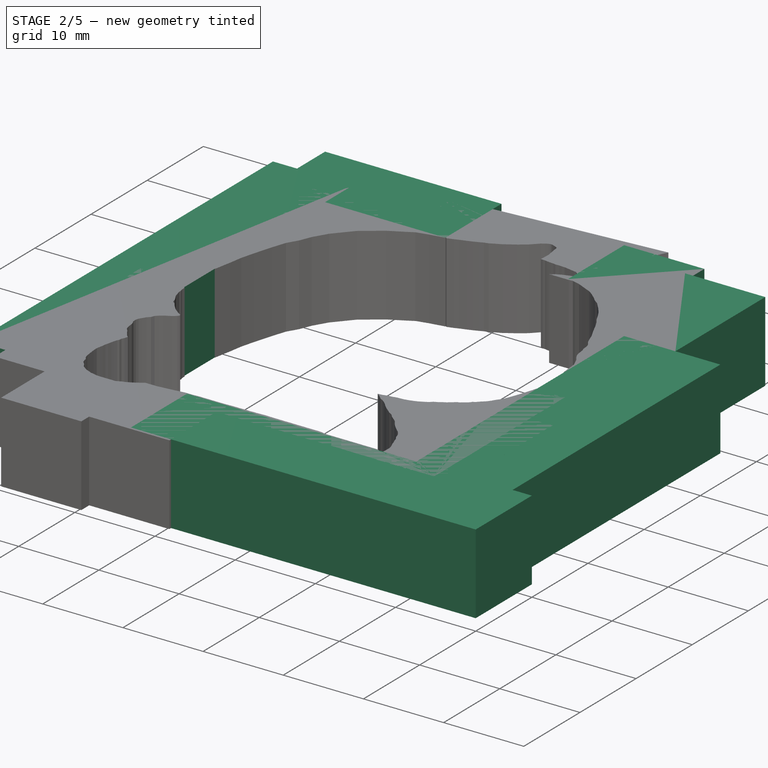
[diagram: stage 2 of 5 — iso view after this stage's code; geometry added in this stage tinted green]
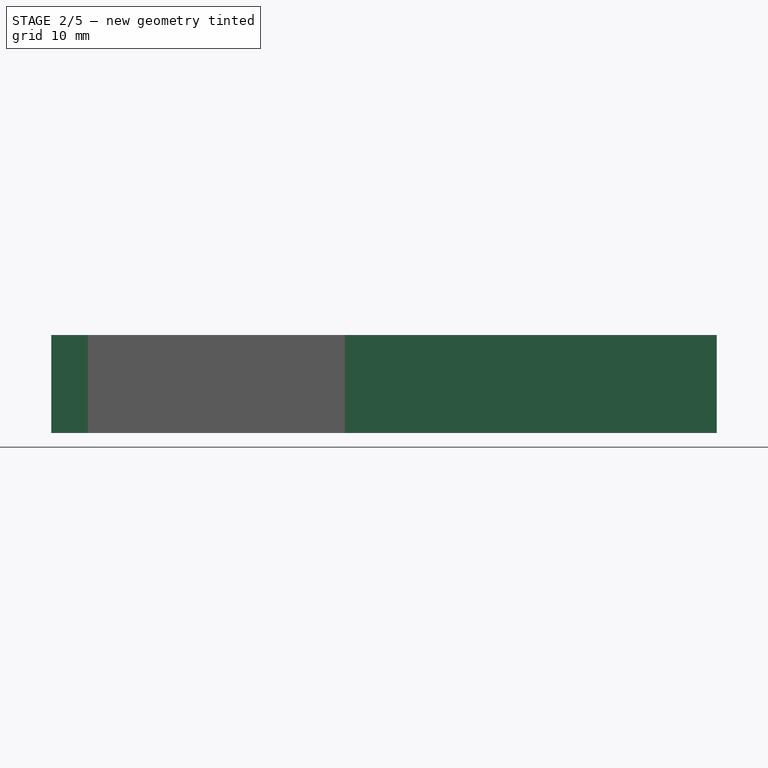
[diagram: stage 2 of 5 — front view after this stage's code; geometry added in this stage tinted green]
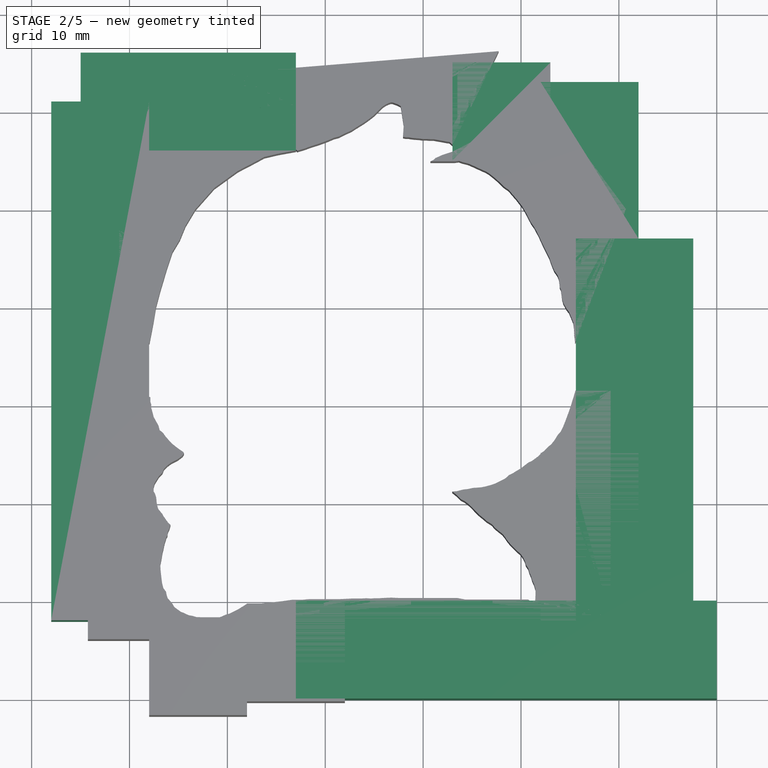
[diagram: stage 2 of 5 — top view after this stage's code; geometry added in this stage tinted green]
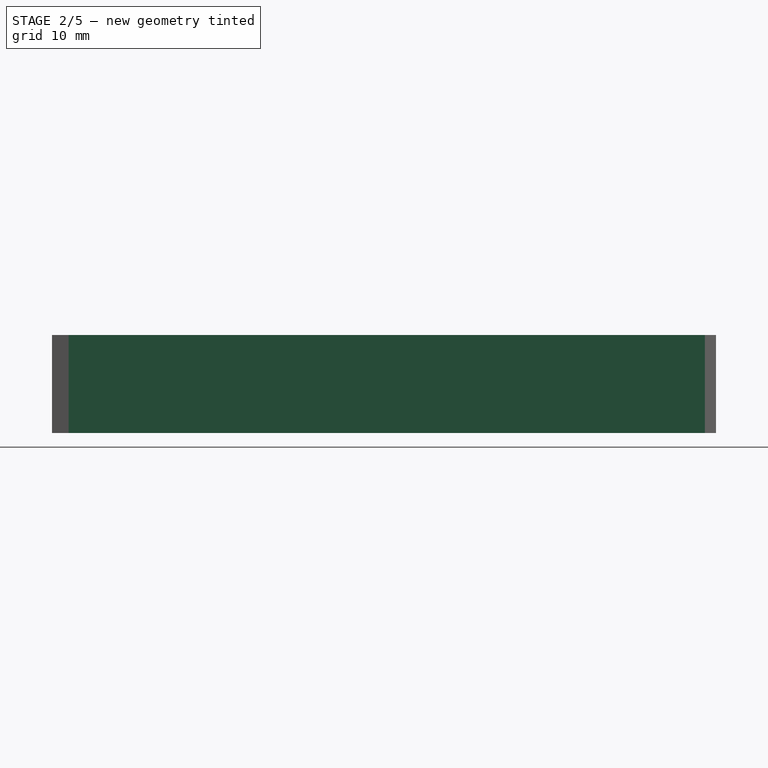
[diagram: stage 2 of 5 — right view after this stage's code; geometry added in this stage tinted green]
FEATURE [App::LinkGroup] LinkGroup001  label="cara"
  ElementList = -> [Extrude016,Extrude017,Extrude018,Extrude019,Extrude021,Extrude022]
  LinkMode = 0
FEATURE [Part::Box] Box001  label="p1"
  AttacherType = Attacher::AttachEngine3D
  Height = 10
  Length = 10
  Placement = pos=(72,-72,0) rot=(0,0,1;0rad)
  Width = 53
FEATURE [Part::Box] Box002  label="p2"
  AttacherType = Attacher::AttachEngine3D
  Height = 10
  Length = 10
  Placement = pos=(75,-33,0) rot=(0,0,1;0rad)
  Width = 19
FEATURE [Part::Box] Box003  label="Cube"
  AttacherType = Attacher::AttachEngine3D
  Height = 10
  Length = 15
  Placement = pos=(82,-24,0) rot=(0,0,1;0rad)
  Width = 10
FEATURE [Part::Box] Box004  label="Cube001"
  AttacherType = Attacher::AttachEngine3D
  Height = 10
  Length = 10
  Placement = pos=(122,-33,0) rot=(0,0,1;0rad)
  Width = 16
FEATURE [Part::Box] Box005  label="Cube002"
  AttacherType = Attacher::AttachEngine3D
  Height = 10
  Length = 12
  Placement = pos=(125.6,-72,0) rot=(0,0,1;0rad)
  Width = 39
FEATURE [Part::Box] Box006  label="Cube003"
  AttacherType = Attacher::AttachEngine3D
  Height = 10
  Length = 10
  Placement = pos=(122,-72,0) rot=(0,0,1;0rad)
  Width = 17.1
FEATURE [Part::Box] Box007  label="Cube004"
  AttacherType = Attacher::AttachEngine3D
  Height = 10
  Length = 43
  Placement = pos=(97,-80,0) rot=(0,0,1;0rad)
  Width = 10
FEATURE [Part::Box] Box008  label="Cube005"
  AttacherType = Attacher::AttachEngine3D
  Height = 10
  Length = 10
  Placement = pos=(113,-25,0) rot=(0,0,1;0rad)
  Width = 10
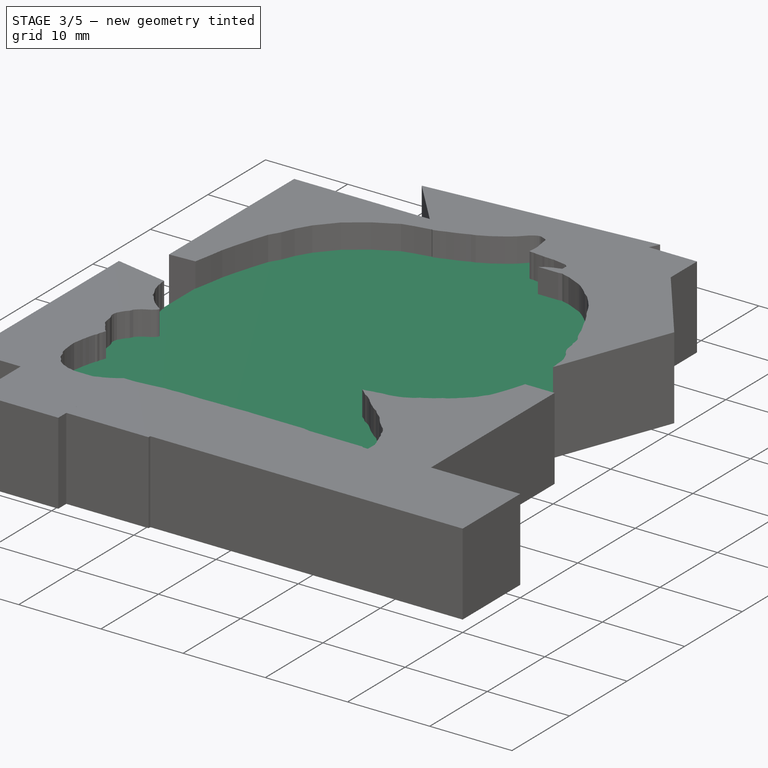
[diagram: stage 3 of 5 — iso view after this stage's code; geometry added in this stage tinted green]
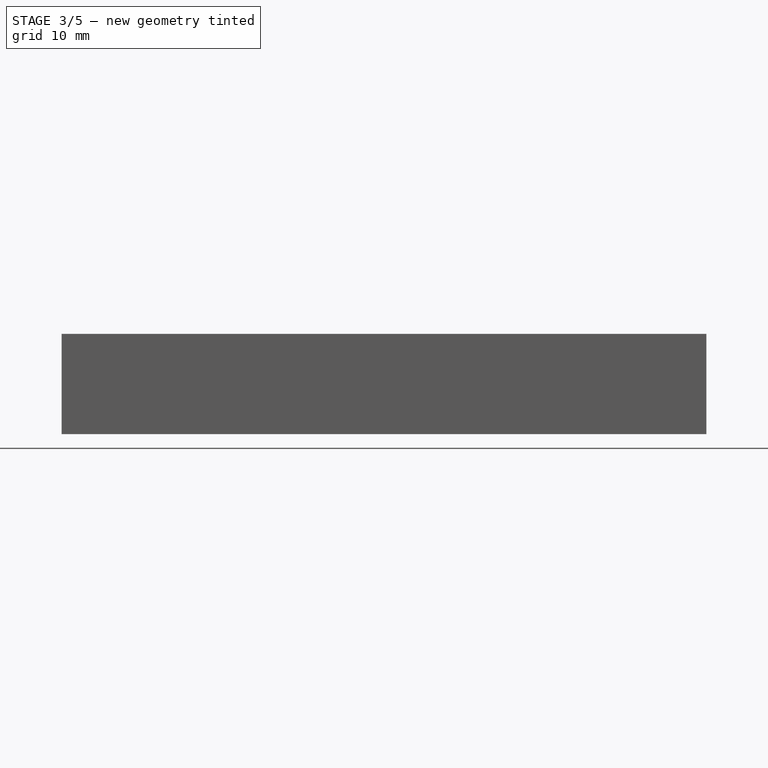
[diagram: stage 3 of 5 — front view after this stage's code; geometry added in this stage tinted green]
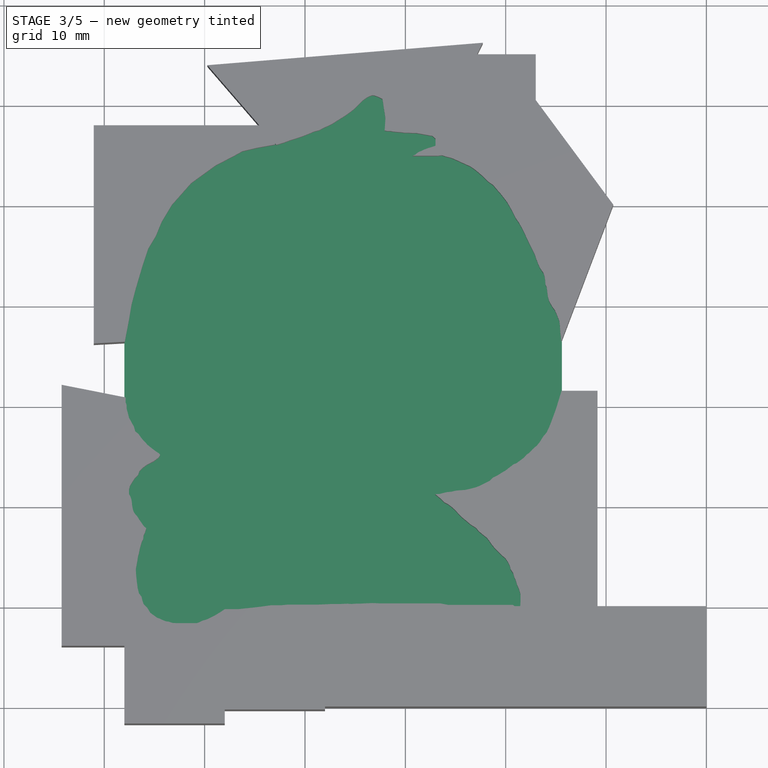
[diagram: stage 3 of 5 — top view after this stage's code; geometry added in this stage tinted green]
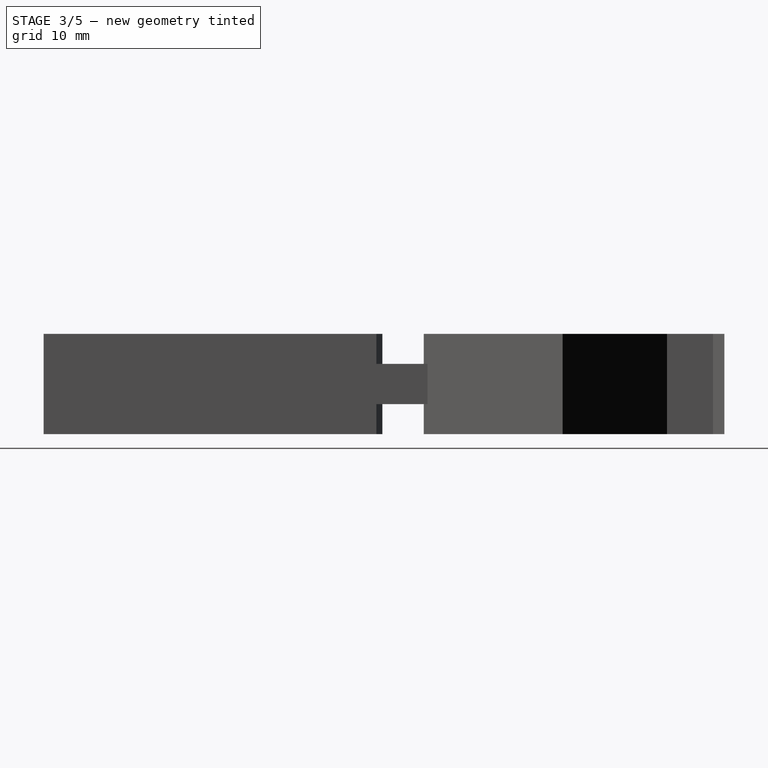
[diagram: stage 3 of 5 — right view after this stage's code; geometry added in this stage tinted green]
FEATURE [Part::Feature] path1
  shape: bbox 26.06 x 35.4 x 2e-07 mm, 0 faces, 0 solids (baked)
FEATURE [Part::Feature] path4
  shape: bbox 17.69 x 37.25 x 2e-07 mm, 0 faces, 0 solids (baked)
FEATURE [Part::Feature] path5
  shape: bbox 5.791 x 1.743 x 2e-07 mm, 0 faces, 0 solids (baked)
FEATURE [Part::Feature] path6
  shape: bbox 10.85 x 9.336 x 2e-07 mm, 0 faces, 0 solids (baked)
FEATURE [Part::Feature] path7
  shape: bbox 7.165 x 3.619 x 2e-07 mm, 0 faces, 0 solids (baked)
FEATURE [Part::Feature] path8
  shape: bbox 12.19 x 9.513 x 2e-07 mm, 0 faces, 0 solids (baked)
FEATURE [Part::Feature] path9
  shape: bbox 8.774 x 11.74 x 2e-07 mm, 0 faces, 0 solids (baked)
FEATURE [Part::Feature] path10
  shape: bbox 30.51 x 1.406 x 2e-07 mm, 0 faces, 0 solids (baked)
FEATURE [Part::Feature] path11
  shape: bbox 10.53 x 8.674 x 2e-07 mm, 0 faces, 0 solids (baked)
FEATURE [Part::Feature] path12
  shape: bbox 10.44 x 8.586 x 2e-07 mm, 0 faces, 0 solids (baked)
FEATURE [Part::Feature] path13
  shape: bbox 4.454 x 2.816 x 2e-07 mm, 0 faces, 0 solids (baked)
FEATURE [Part::Feature] path14
  shape: bbox 12.8 x 7.873 x 2e-07 mm, 0 faces, 0 solids (baked)
FEATURE [Part::Feature] path16
  shape: bbox 4.878 x 3.6 x 2e-07 mm, 0 faces, 0 solids (baked)
FEATURE [Part::Feature] path17
  shape: bbox 4.956 x 4.129 x 2e-07 mm, 0 faces, 0 solids (baked)
FEATURE [Part::Extrusion] Extrude
  Base = -> path1
  Dir = (0,0,1)
  DirMode = 2
  FaceMakerClass = Part::FaceMakerBullseye
  FaceMakerMode = 3
  LengthFwd = 5
  LengthRev = 0
  Solid = false
  Symmetric = false
FEATURE [Part::Extrusion] Extrude001
  Base = -> path4
  Dir = (0,0,1)
  DirMode = 2
  FaceMakerClass = Part::FaceMakerBullseye
  FaceMakerMode = 3
  LengthFwd = 5
  LengthRev = 0
  Solid = false
  Symmetric = false
FEATURE [Part::Extrusion] Extrude002
  Base = -> path5
  Dir = (0,0,1)
  DirMode = 2
  FaceMakerClass = Part::FaceMakerBullseye
  FaceMakerMode = 3
  LengthFwd = 5
  LengthRev = 0
  Solid = false
  Symmetric = false
FEATURE [Part::Extrusion] Extrude003
  Base = -> path6
  Dir = (0,0,1)
  DirMode = 2
  FaceMakerClass = Part::FaceMakerBullseye
  FaceMakerMode = 3
  LengthFwd = 5
  LengthRev = 0
  Solid = false
  Symmetric = false
FEATURE [Part::Extrusion] Extrude004
  Base = -> path7
  Dir = (0,0,1)
  DirMode = 2
  FaceMakerClass = Part::FaceMakerBullseye
  FaceMakerMode = 3
  LengthFwd = 5
  LengthRev = 0
  Solid = false
  Symmetric = false
FEATURE [Part::Extrusion] Extrude005
  Base = -> path8
  Dir = (0,0,1)
  DirMode = 2
  FaceMakerClass = Part::FaceMakerBullseye
  FaceMakerMode = 3
  LengthFwd = 5
  LengthRev = 0
  Solid = false
  Symmetric = false
FEATURE [Part::Extrusion] Extrude006
  Base = -> path9
  Dir = (0,0,1)
  DirMode = 2
  FaceMakerClass = Part::FaceMakerBullseye
  FaceMakerMode = 3
  LengthFwd = 5
  LengthRev = 0
  Solid = false
  Symmetric = false
FEATURE [Part::Extrusion] Extrude007
  Base = -> path10
  Dir = (0,0,1)
  DirMode = 2
  FaceMakerClass = Part::FaceMakerBullseye
  FaceMakerMode = 3
  LengthFwd = 5
  LengthRev = 0
  Solid = false
  Symmetric = false
FEATURE [Part::Extrusion] Extrude008
  Base = -> path1
  Dir = (0,0,1)
  DirMode = 2
  FaceMakerClass = Part::FaceMakerBullseye
  FaceMakerMode = 3
  LengthFwd = 5
  LengthRev = 0
  Solid = false
  Symmetric = false
FEATURE [Part::Extrusion] Extrude009
  Base = -> path4
  Dir = (0,0,1)
  DirMode = 2
  FaceMakerClass = Part::FaceMakerBullseye
  FaceMakerMode = 3
  LengthFwd = 5
  LengthRev = 0
  Solid = false
  Symmetric = false
FEATURE [Part::Extrusion] Extrude010
  Base = -> path5
  Dir = (0,0,1)
  DirMode = 2
  FaceMakerClass = Part::FaceMakerBullseye
  FaceMakerMode = 3
  LengthFwd = 5
  LengthRev = 0
  Solid = false
  Symmetric = false
FEATURE [Part::Extrusion] Extrude011
  Base = -> path6
  Dir = (0,0,1)
  DirMode = 2
  FaceMakerClass = Part::FaceMakerBullseye
  FaceMakerMode = 3
  LengthFwd = 5
  LengthRev = 0
  Solid = false
  Symmetric = false
FEATURE [Part::Extrusion] Extrude012
  Base = -> path7
  Dir = (0,0,1)
  DirMode = 2
  FaceMakerClass = Part::FaceMakerBullseye
  FaceMakerMode = 3
  LengthFwd = 5
  LengthRev = 0
  Solid = false
  Symmetric = false
FEATURE [Part::Extrusion] Extrude013
  Base = -> path8
  Dir = (0,0,1)
  DirMode = 2
  FaceMakerClass = Part::FaceMakerBullseye
  FaceMakerMode = 3
  LengthFwd = 5
  LengthRev = 0
  Solid = false
  Symmetric = false
FEATURE [Part::Extrusion] Extrude014
  Base = -> path9
  Dir = (0,0,1)
  DirMode = 2
  FaceMakerClass = Part::FaceMakerBullseye
  FaceMakerMode = 3
  LengthFwd = 5
  LengthRev = 0
  Solid = false
  Symmetric = false
FEATURE [Part::Extrusion] Extrude015
  Base = -> path10
  Dir = (0,0,1)
  DirMode = 2
  FaceMakerClass = Part::FaceMakerBullseye
  FaceMakerMode = 3
  LengthFwd = 5
  LengthRev = 0
  Solid = false
  Symmetric = false
FEATURE [Part::Box] Box  label="moneda"
  AttacherType = Attacher::AttachEngine3D
  Height = 4
  Length = 46
  Placement = pos=(81,-72,3) rot=(0,0,1;0rad)
  Width = 53
FEATURE [Part::Cut] Cut  label="c"
  Base = -> Box
  Refine = true
  Tool = -> Box001
FEATURE [Part::Cut] Cut001
  Base = -> Cut
  Refine = true
  Tool = -> Box002
FEATURE [Part::Cut] Cut002
  Base = -> Cut001
  Refine = true
  Tool = -> Box003
FEATURE [Part::Cut] Cut003
  Base = -> Cut002
  Refine = true
  Tool = -> Box004
FEATURE [Part::Cut] Cut004
  Base = -> Cut003
  Refine = true
  Tool = -> Box005
FEATURE [Part::Cut] Cut005
  Base = -> Cut004
  Refine = true
  Tool = -> Box006
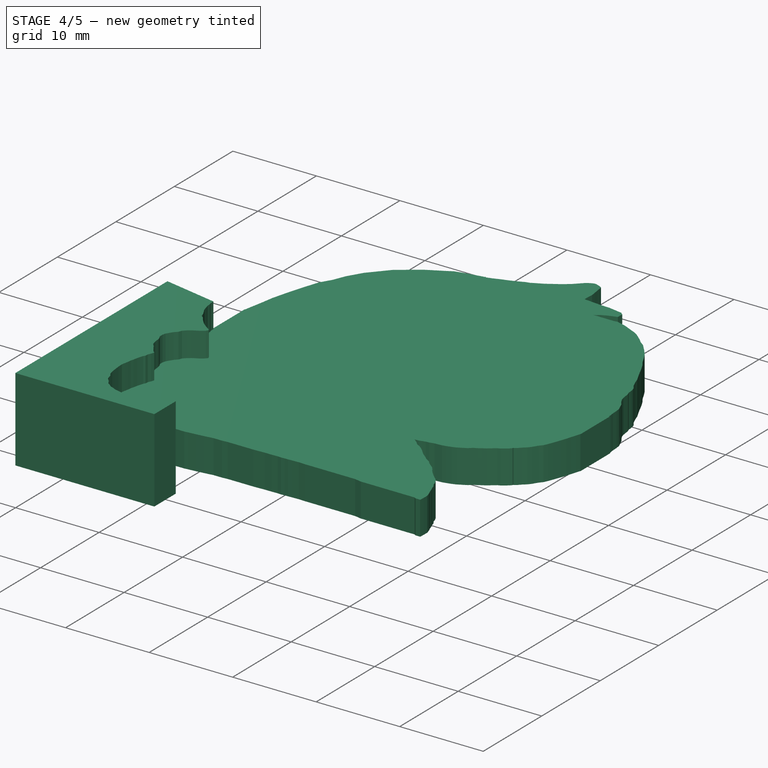
[diagram: stage 4 of 5 — iso view after this stage's code; geometry added in this stage tinted green]
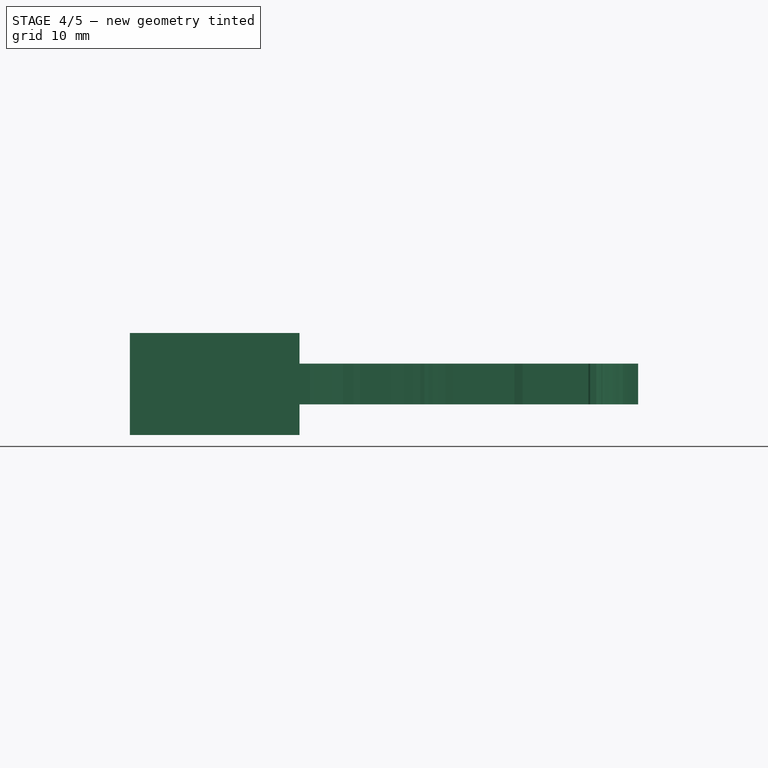
[diagram: stage 4 of 5 — front view after this stage's code; geometry added in this stage tinted green]
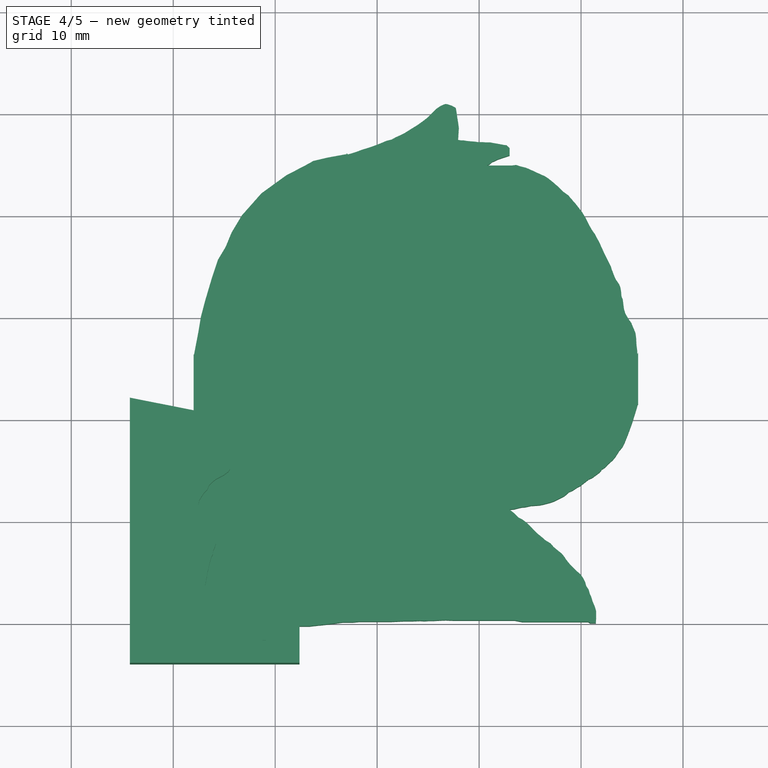
[diagram: stage 4 of 5 — top view after this stage's code; geometry added in this stage tinted green]
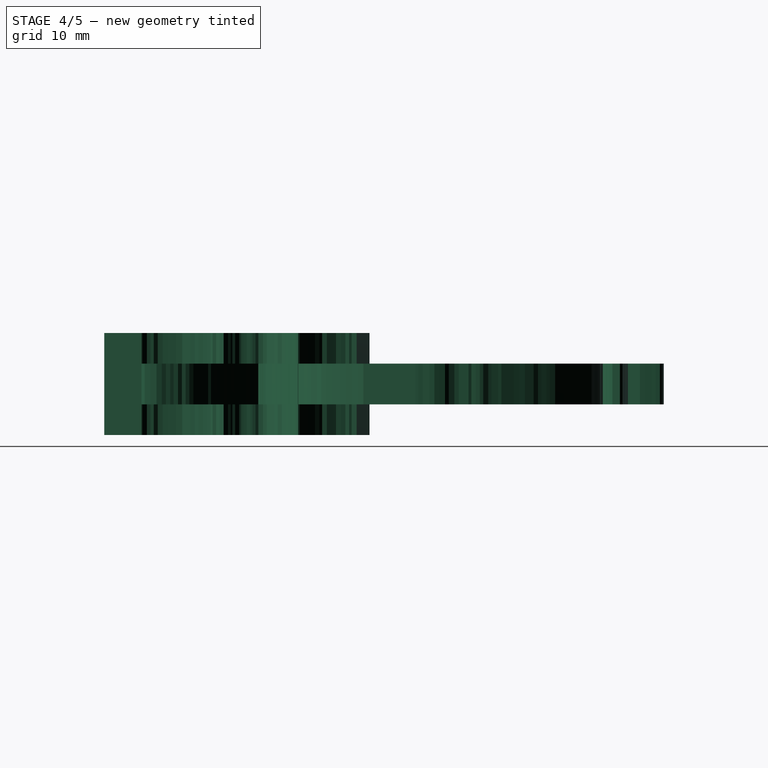
[diagram: stage 4 of 5 — right view after this stage's code; geometry added in this stage tinted green]
FEATURE [Part::Cut] Cut006
  Base = -> Cut005
  Refine = true
  Tool = -> Box007
FEATURE [Part::Cut] Cut007
  Base = -> Cut006
  Refine = true
  Tool = -> Box008
FEATURE [Part::Cut] Cut008
  Base = -> Cut007
  Refine = true
  Tool = -> Box009
FEATURE [Part::Cut] Cut009
  Base = -> Cut008
  Refine = true
  Tool = -> Box010
FEATURE [Part::Cut] Cut010
  Base = -> Cut009
  Refine = true
  Tool = -> Extrude023
FEATURE [Part::Cut] Cut011
  Base = -> Cut010
  Refine = true
  Tool = -> Extrude024
FEATURE [Part::Cut] Cut012
  Base = -> Cut011
  Refine = true
  Tool = -> Extrude025
FEATURE [Part::Cut] Cut013
  Base = -> Cut012
  Refine = true
  Tool = -> Extrude026
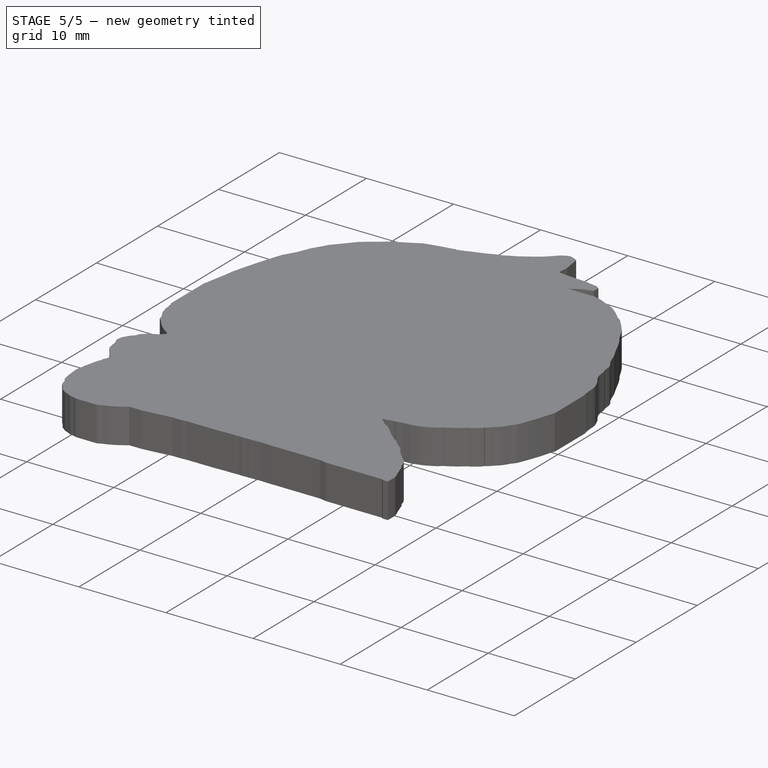
[diagram: stage 5 of 5 — iso view after this stage's code; geometry added in this stage tinted green]
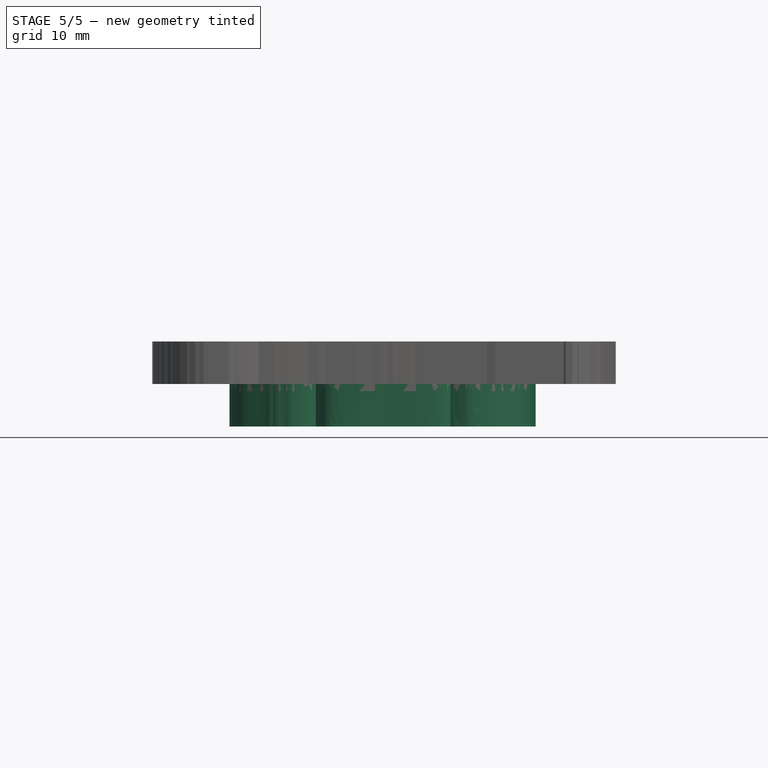
[diagram: stage 5 of 5 — front view after this stage's code; geometry added in this stage tinted green]
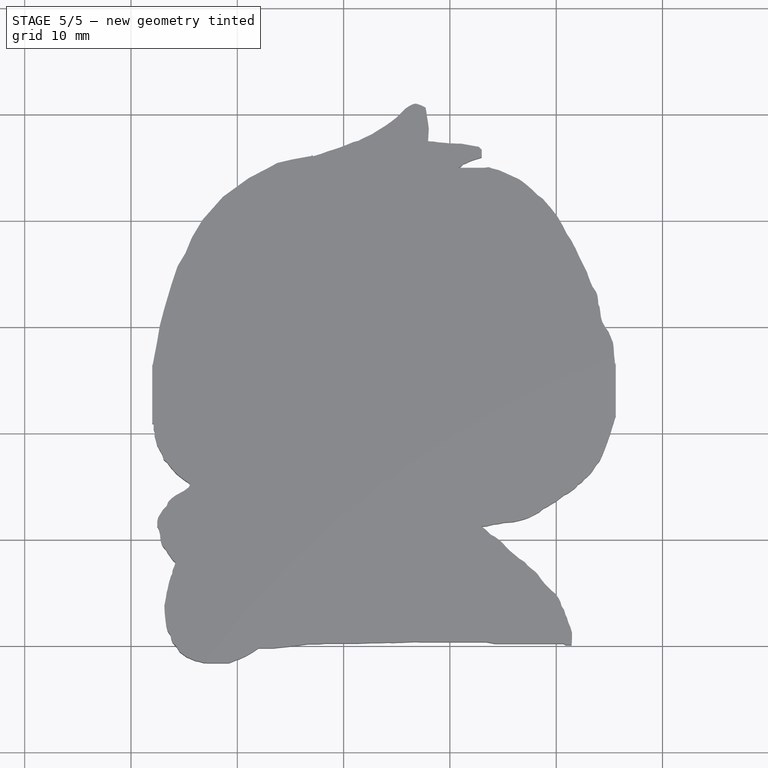
[diagram: stage 5 of 5 — top view after this stage's code; geometry added in this stage tinted green]
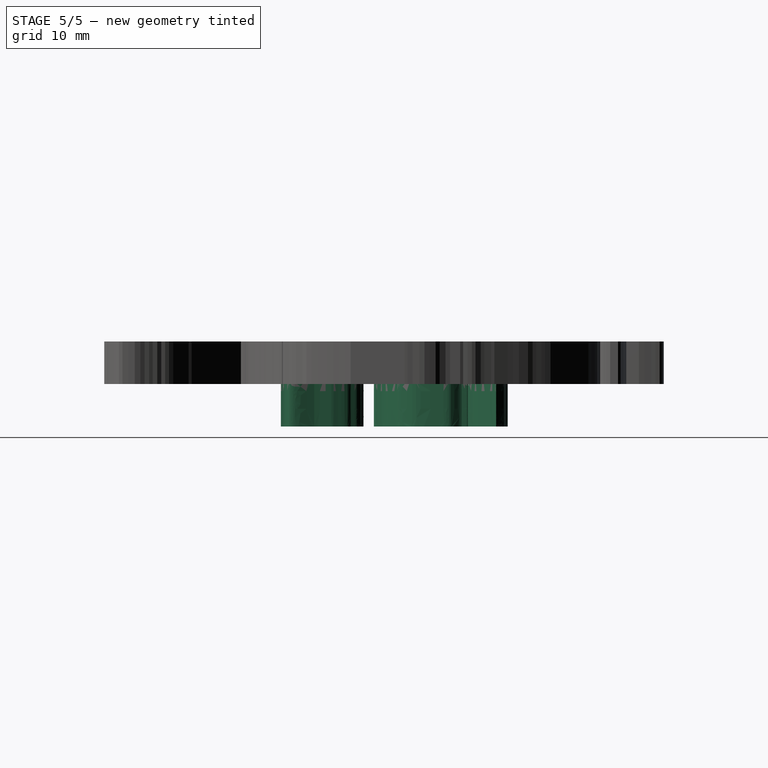
[diagram: stage 5 of 5 — right view after this stage's code; geometry added in this stage tinted green]
FEATURE [App::LinkGroup] LinkGroup  label="cuerpo"
  ElementList = -> [Extrude,Extrude001,Extrude002,Extrude003,Extrude004,Extrude005,Extrude006,Extrude007,Extrude008,Extrude009,Extrude010,Extrude011,Extrude012,Extrude013,Extrude014,Extrude015]
  LinkMode = 0
FEATURE [Part::Extrusion] Extrude016  label="u1"
  Base = -> path11
  Dir = (0,0,-1)
  DirMode = 2
  FaceMakerClass = Part::FaceMakerBullseye
  FaceMakerMode = 3
  LengthFwd = 5
  LengthRev = 0
  Placement = pos=(0,0,4) rot=(0,0,1;0rad)
  Solid = true
  Symmetric = false
FEATURE [Part::Extrusion] Extrude017  label="u2"
  Base = -> path12
  Dir = (0,0,-1)
  DirMode = 2
  FaceMakerClass = Part::FaceMakerBullseye
  FaceMakerMode = 3
  LengthFwd = 5
  LengthRev = 0
  Placement = pos=(0,0,4) rot=(0,0,1;0rad)
  Solid = true
  Symmetric = false
FEATURE [Part::Extrusion] Extrude018  label="u3"
  Base = -> path13
  Dir = (0,0,-1)
  DirMode = 2
  FaceMakerClass = Part::FaceMakerBullseye
  FaceMakerMode = 3
  LengthFwd = 5
  LengthRev = 0
  Placement = pos=(0,0,4) rot=(0,0,1;0rad)
  Solid = true
  Symmetric = false
FEATURE [Part::Extrusion] Extrude019  label="u4"
  Base = -> path14
  Dir = (0,0,-1)
  DirMode = 2
  FaceMakerClass = Part::FaceMakerBullseye
  FaceMakerMode = 3
  LengthFwd = 5
  LengthRev = 0
  Placement = pos=(0,0,4) rot=(0,0,1;0rad)
  Solid = true
  Symmetric = false
FEATURE [Part::Extrusion] Extrude021  label="u5"
  Base = -> path16
  Dir = (0,0,-1)
  DirMode = 2
  FaceMakerClass = Part::FaceMakerBullseye
  FaceMakerMode = 3
  LengthFwd = 5
  LengthRev = 0
  Placement = pos=(0,0,4) rot=(0,0,1;0rad)
  Solid = true
  Symmetric = false
FEATURE [Part::Extrusion] Extrude022  label="u6"
  Base = -> path17
  Dir = (0,0,-1)
  DirMode = 2
  FaceMakerClass = Part::FaceMakerBullseye
  FaceMakerMode = 3
  LengthFwd = 5
  LengthRev = 0
  Placement = pos=(0,0,4) rot=(0,0,1;0rad)
  Solid = true
  Symmetric = false
FEATURE [Part::Cut] Cut014  label="moneda_def"
  Base = -> Cut013
  Refine = true
  Tool = -> Extrude027
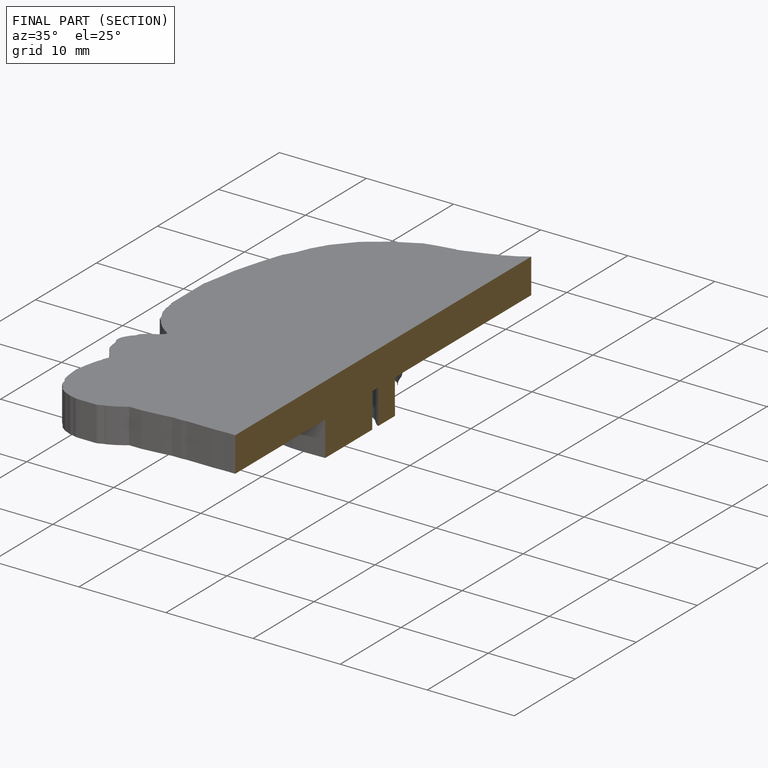
[diagram: finished part — half-section view (interior)]
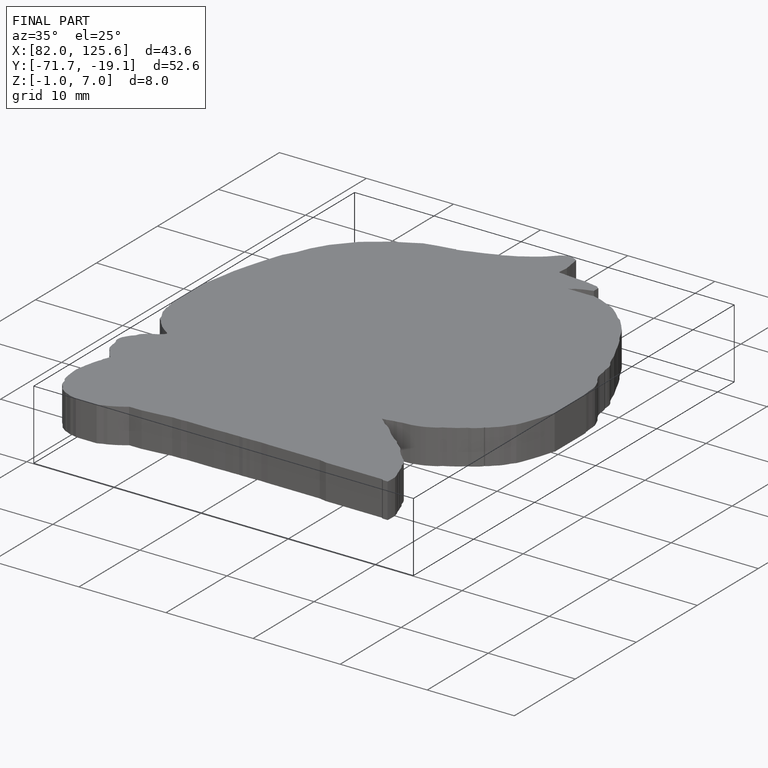
[diagram: finished part — iso view with bounding-box wireframe]
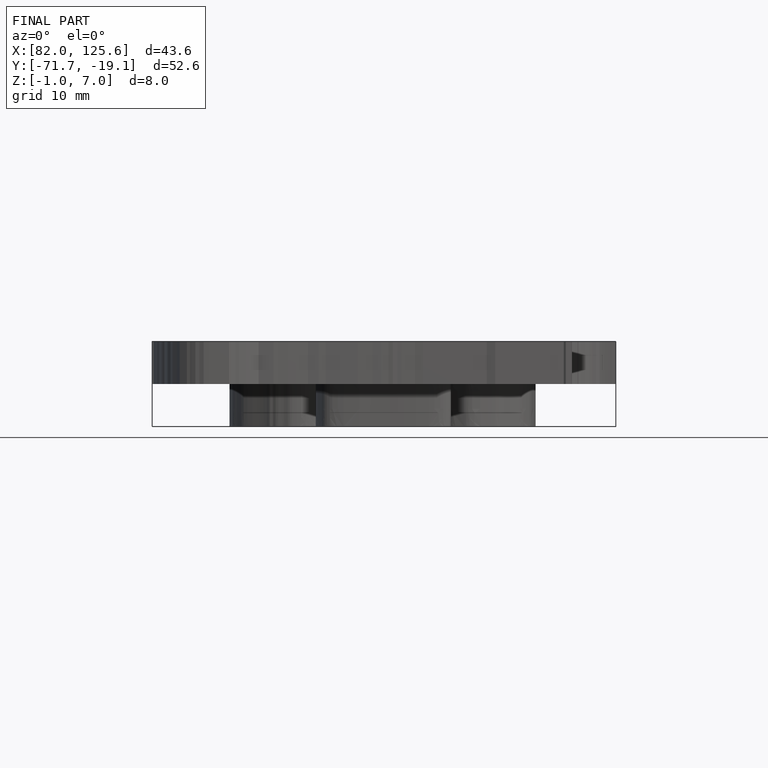
[diagram: finished part — front view with bounding-box wireframe]
